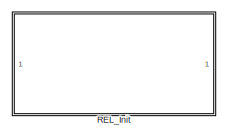
[diagram: root canvas - part 1/5, top left region]
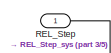
[diagram: root canvas - part 2/5, top center region]
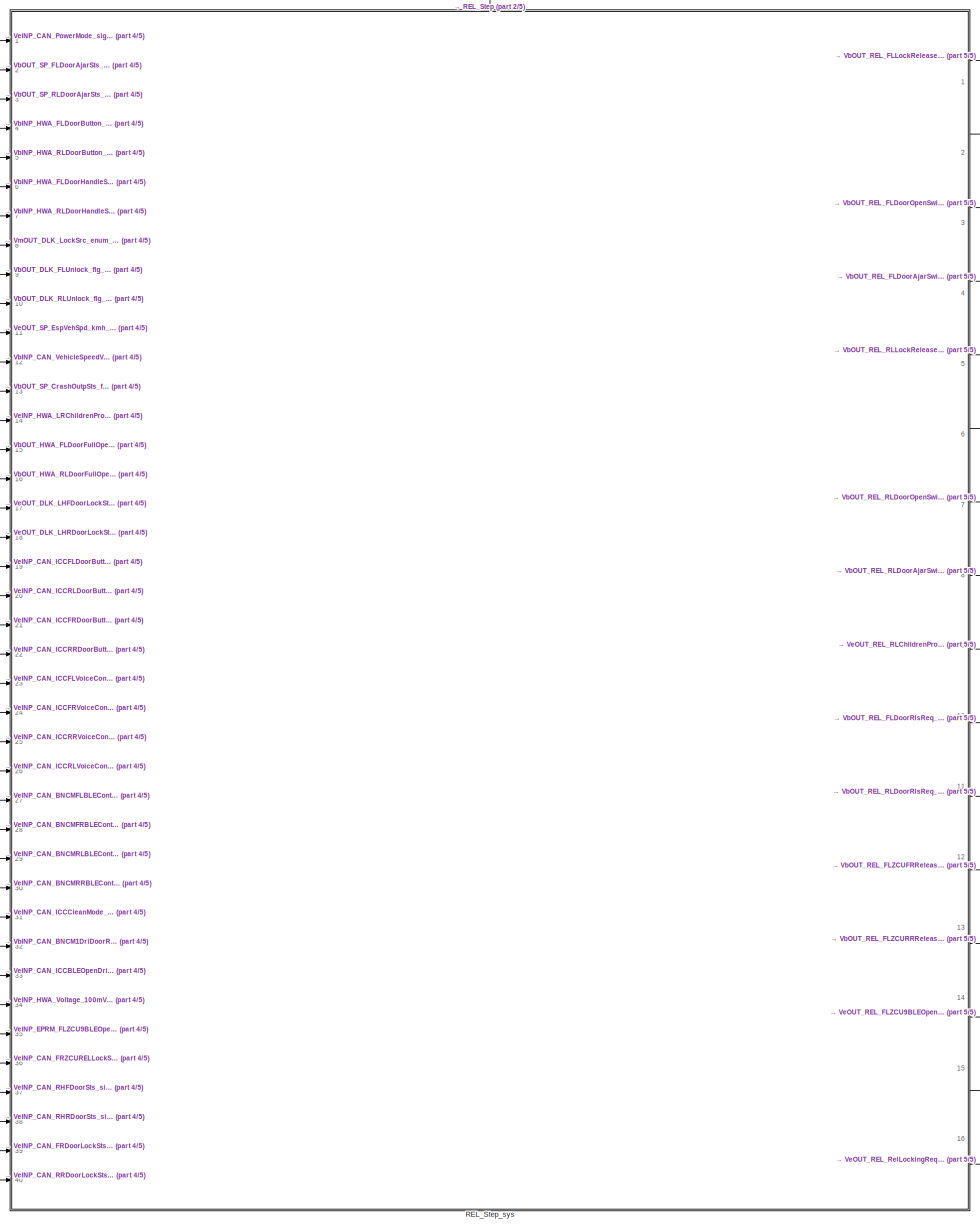
[diagram: root canvas - part 3/5, center side, full height]
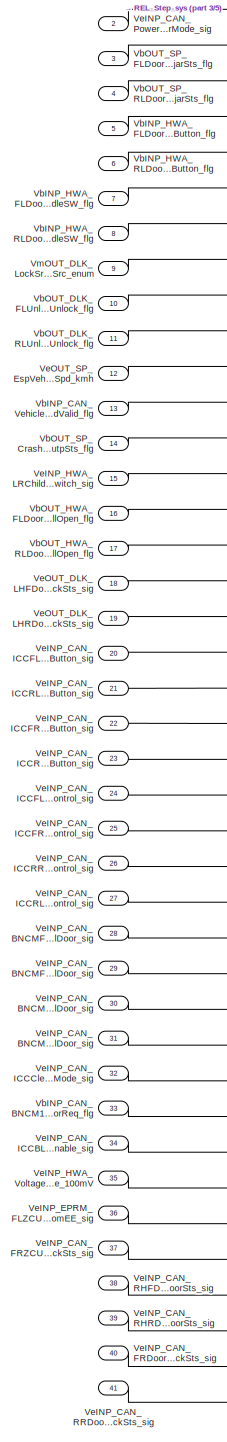
[diagram: root canvas - part 4/5, left side, full height]
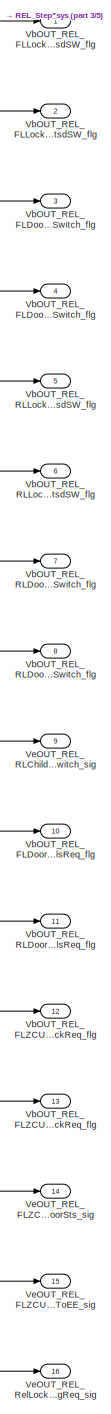
[diagram: root canvas - part 5/5, right side, full height]
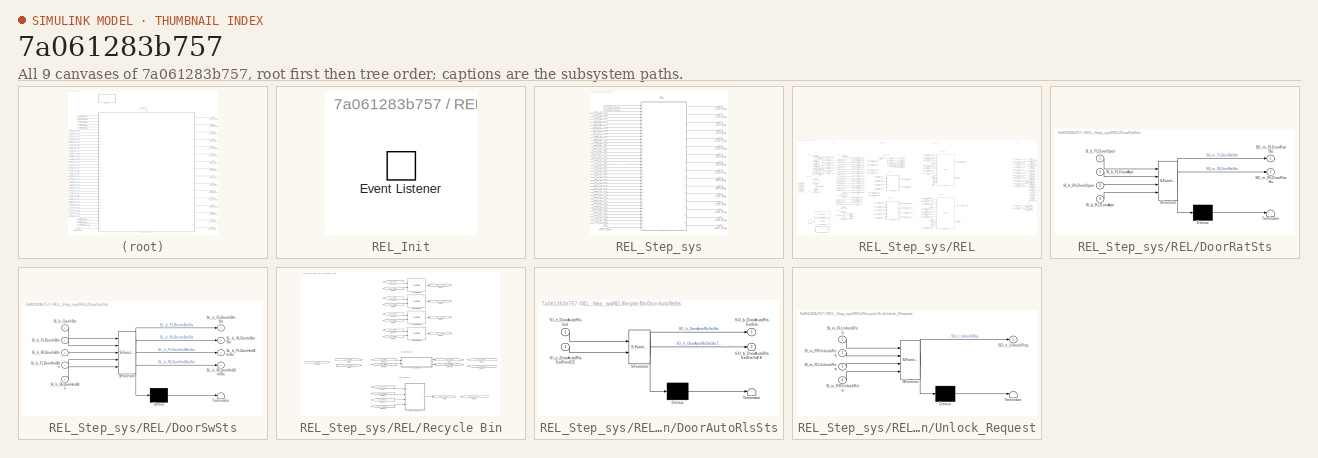
[diagram: thumbnail index - all 9 canvases of the model, root first then tree order]
MODEL slx_7a061283b757
KIND model
CONFIG AbsTol = auto
CONFIG EnableMultiTasking = on
CONFIG FixedStep = 0.01
CONFIG MaxStep = auto
CONFIG MinStep = auto
CONFIG RelTol = 1e-3
CONFIG SampleTimeConstraint = Unconstrained
CONFIG SolverName = FixedStepDiscrete
CONFIG StartTime = 0.0
CONFIG StopTime = 20.0
BLOCK [SubSystem] REL_Init
  Ports = []
  RequestExecContextInheritance = off
BLOCK [EventListener] REL_Init/Event Listener
  EventName = reset
BLOCK [Inport] REL_Step
  OutputFunctionCall = on
  SampleTime = 0.01
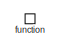
[diagram: REL_Step_sys - part 1/2, top center region]
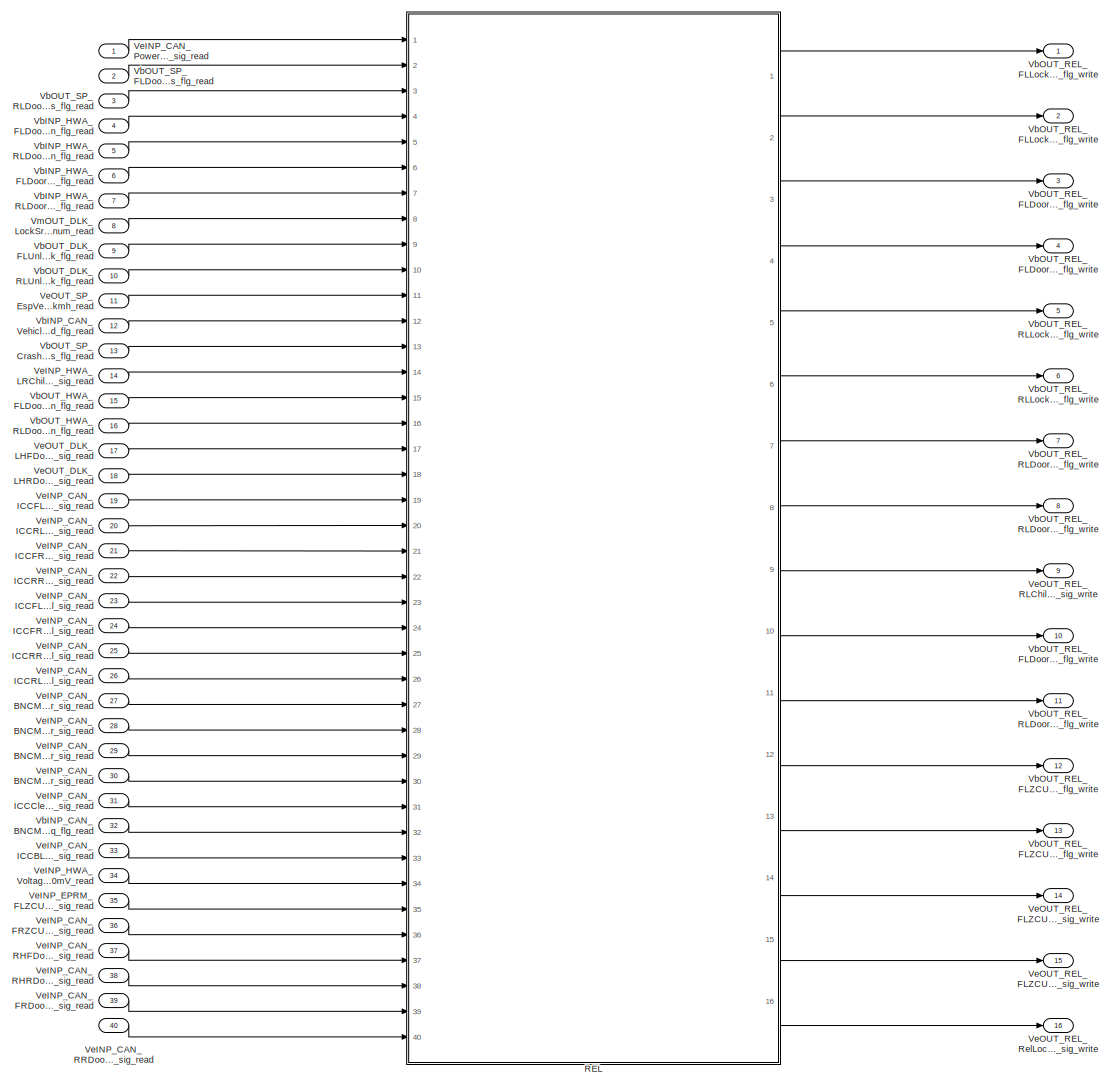
[diagram: REL_Step_sys - part 2/2, most of the canvas]
BLOCK [SubSystem] REL_Step_sys
  Ports = [40, 16, 0, 1]
  RequestExecContextInheritance = off
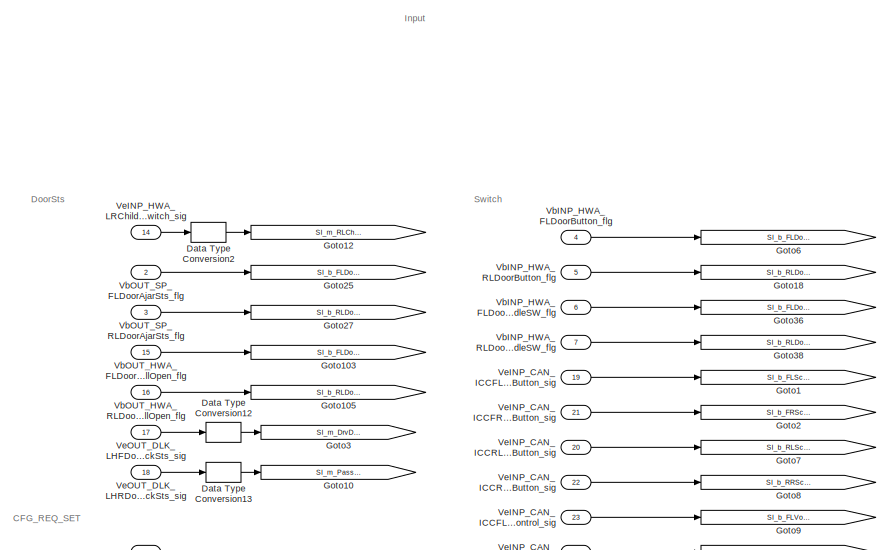
[diagram: REL_Step_sys/REL - part 1/5, top left region]
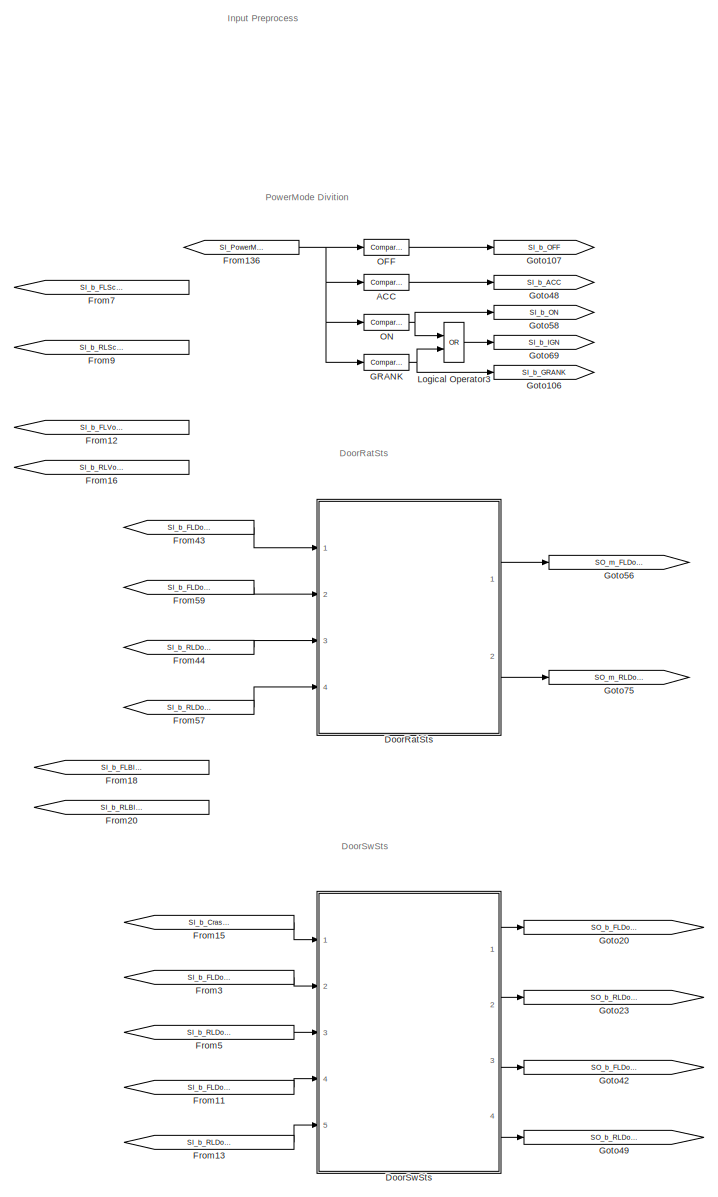
[diagram: REL_Step_sys/REL - part 2/5, center side, full height]
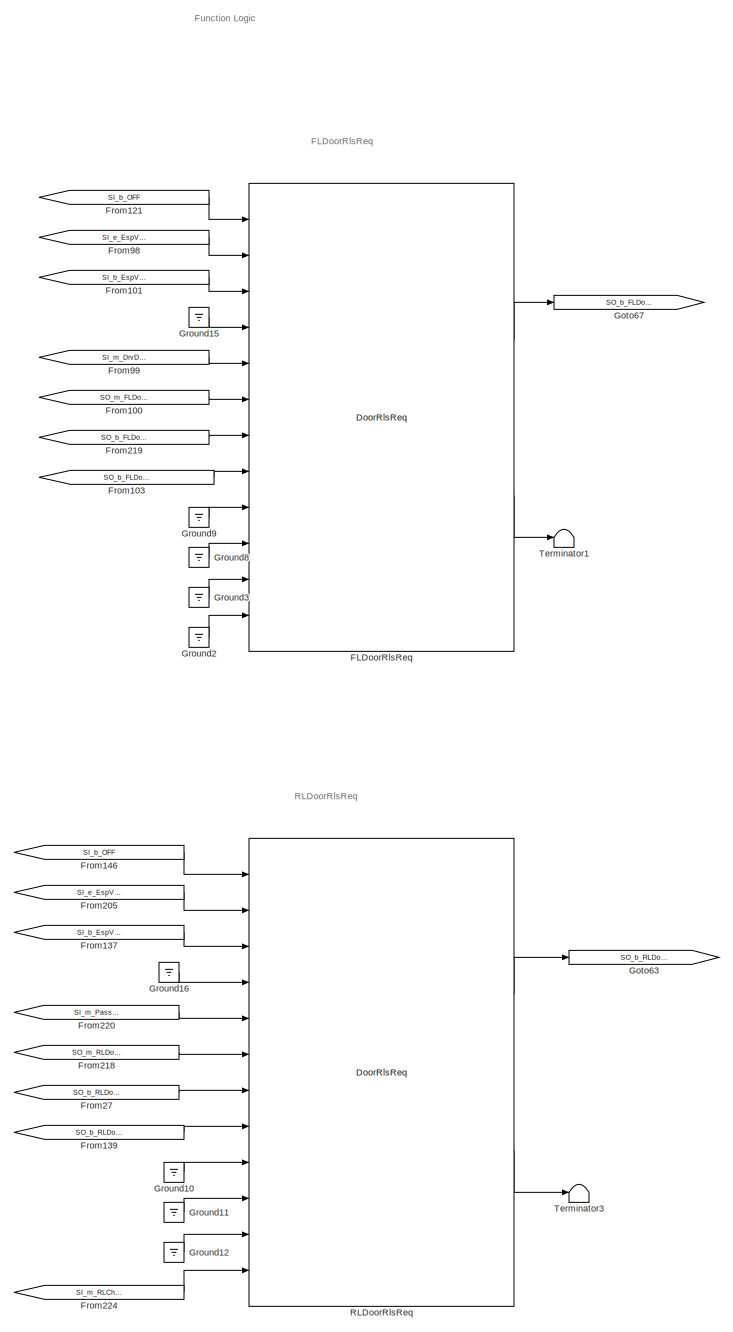
[diagram: REL_Step_sys/REL - part 3/5, center side, full height]
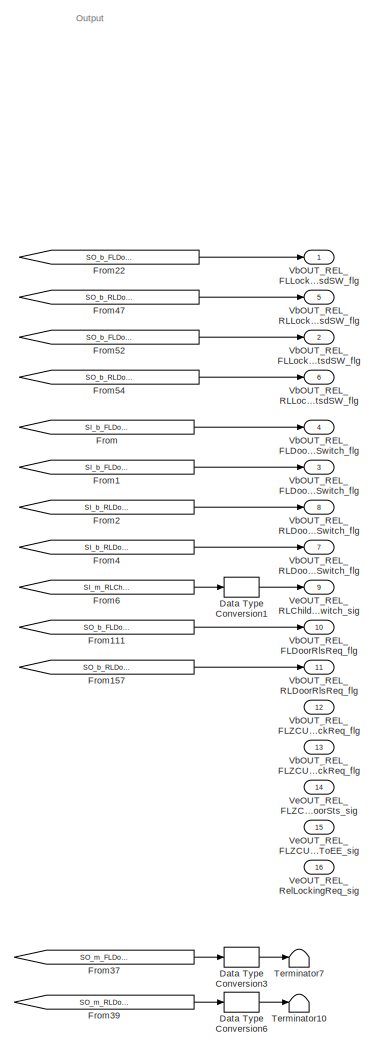
[diagram: REL_Step_sys/REL - part 4/5, right side, full height]
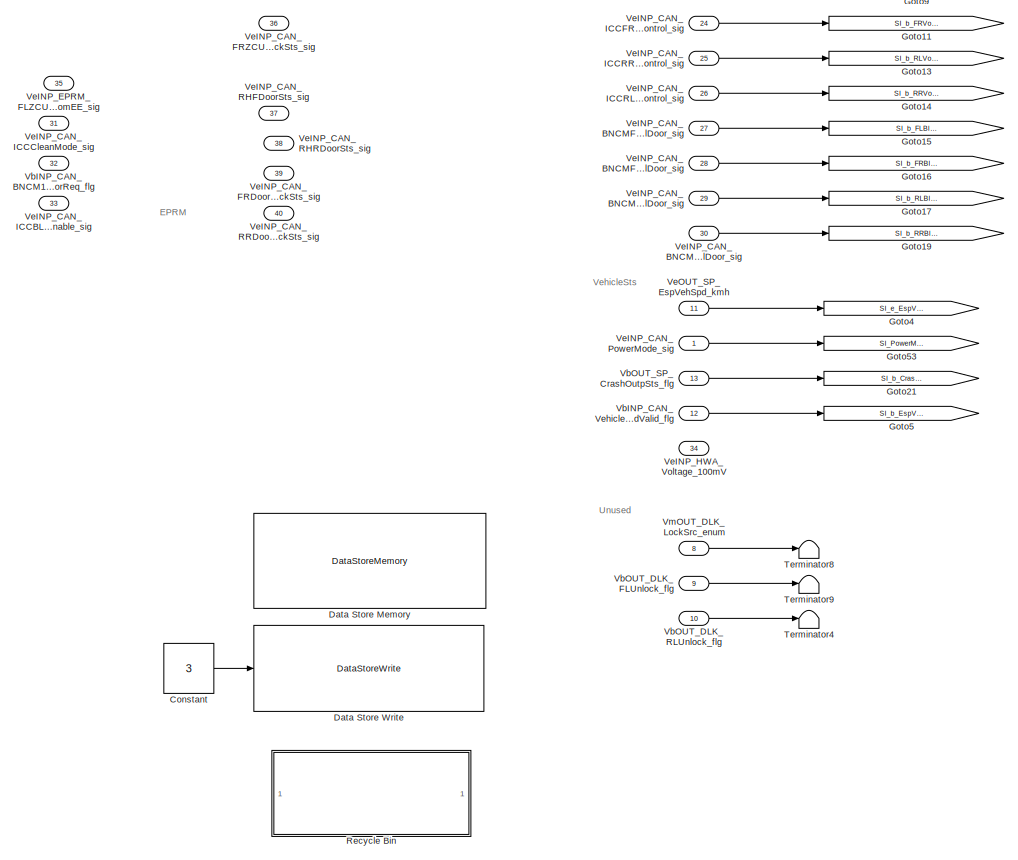
[diagram: REL_Step_sys/REL - part 5/5, bottom left region]
BLOCK [SubSystem] REL_Step_sys/REL
  Ports = [40, 16]
  RequestExecContextInheritance = off
BLOCK [Reference] REL_Step_sys/REL/ACC  REF=simulink/Logic and Bit
Operations/Compare
To Constant
  Commented = on
  Ports = [1, 1]
  SourceBlock = simulink/Logic and Bit\nOperations/Compare\nTo Constant
  SourceProductBaseCode = SL
  SourceType = Compare To Constant
BLOCK [Constant] REL_Step_sys/REL/Constant
  OutDataTypeStr = uint8
  Value = 3
BLOCK [DataStoreMemory] REL_Step_sys/REL/Data Store Memory
  DataStoreName = E03_REL_L
  OutDataTypeStr = uint8
  ShowAdditionalParam = off
  WriteAfterWriteMsg = warning
BLOCK [DataStoreWrite] REL_Step_sys/REL/Data Store Write
  DataStoreName = E03_REL_L
  IndexOptions = Index vector (dialog)
  Indices = 1
  OutputSizes = 1
  Ports = [1]
BLOCK [DataTypeConversion] REL_Step_sys/REL/Data Type Conversion1
  OutDataTypeStr = uint8
  RndMeth = Floor
  SaturateOnIntegerOverflow = off
BLOCK [DataTypeConversion] REL_Step_sys/REL/Data Type Conversion12
  OutDataTypeStr = Enum: Door_Sts_E
  RndMeth = Floor
  SaturateOnIntegerOverflow = off
BLOCK [DataTypeConversion] REL_Step_sys/REL/Data Type Conversion13
  OutDataTypeStr = Enum: Door_Sts_E
  RndMeth = Floor
  SaturateOnIntegerOverflow = off
BLOCK [DataTypeConversion] REL_Step_sys/REL/Data Type Conversion2
  OutDataTypeStr = Enum: Child_Sts_E
  RndMeth = Floor
  SaturateOnIntegerOverflow = off
BLOCK [DataTypeConversion] REL_Step_sys/REL/Data Type Conversion3
  Commented = on
  OutDataTypeStr = uint8
  RndMeth = Floor
  SaturateOnIntegerOverflow = off
BLOCK [DataTypeConversion] REL_Step_sys/REL/Data Type Conversion6
  Commented = on
  OutDataTypeStr = uint8
  RndMeth = Floor
  SaturateOnIntegerOverflow = off
BLOCK [SubSystem] REL_Step_sys/REL/DoorRatSts
  ErrorFcn = Stateflow.Translate.translate
  PermitHierarchicalResolution = ExplicitOnly
  Ports = [4, 2]
  RequestExecContextInheritance = off
  SFBlockType = Chart
  TreatAsAtomicUnit = on
BLOCK [Demux] REL_Step_sys/REL/DoorRatSts/ Demux 
  Outputs = 1
  Ports = [1, 1]
BLOCK [S-Function] REL_Step_sys/REL/DoorRatSts/ SFunction 
  EnableBusSupport = on
  FunctionName = sf_sfun
  PortCounts = [4 3]
  Ports = [4, 3]
  SFcnIsStateOwnerBlock = off
  SFunctionDeploymentMode = off
  Tag = Stateflow S-Function 3
BLOCK [Terminator] REL_Step_sys/REL/DoorRatSts/ Terminator 
BLOCK [Inport] REL_Step_sys/REL/DoorRatSts/SI_b_FLDoorAjar
  Port = 2
BLOCK [Inport] REL_Step_sys/REL/DoorRatSts/SI_b_FLDoorOpen
BLOCK [Inport] REL_Step_sys/REL/DoorRatSts/SI_b_RLDoorAjar
  Port = 4
BLOCK [Inport] REL_Step_sys/REL/DoorRatSts/SI_b_RLDoorOpen
  Port = 3
BLOCK [Outport] REL_Step_sys/REL/DoorRatSts/SO_m_FLDoorRatSts
BLOCK [Outport] REL_Step_sys/REL/DoorRatSts/SO_m_RLDoorRatSts
  Port = 2
BLOCK [SubSystem] REL_Step_sys/REL/DoorSwSts
  ErrorFcn = Stateflow.Translate.translate
  PermitHierarchicalResolution = ExplicitOnly
  Ports = [5, 4]
  RequestExecContextInheritance = off
  SFBlockType = Chart
  TreatAsAtomicUnit = on
BLOCK [Demux] REL_Step_sys/REL/DoorSwSts/ Demux 
  Outputs = 1
  Ports = [1, 1]
BLOCK [S-Function] REL_Step_sys/REL/DoorSwSts/ SFunction 
  EnableBusSupport = on
  FunctionName = sf_sfun
  PortCounts = [5 5]
  Ports = [5, 5]
  SFcnIsStateOwnerBlock = off
  SFunctionDeploymentMode = off
  Tag = Stateflow S-Function 23
BLOCK [Terminator] REL_Step_sys/REL/DoorSwSts/ Terminator 
BLOCK [Inport] REL_Step_sys/REL/DoorSwSts/SI_b_CrashSts
BLOCK [Inport] REL_Step_sys/REL/DoorSwSts/SI_b_FLDoorHndBtn
  Port = 4
BLOCK [Inport] REL_Step_sys/REL/DoorSwSts/SI_b_FLDoorInBtn
  Port = 2
BLOCK [Inport] REL_Step_sys/REL/DoorSwSts/SI_b_RLDoorHndBtn
  Port = 5
BLOCK [Inport] REL_Step_sys/REL/DoorSwSts/SI_b_RLDoorInBtn
  Port = 3
BLOCK [Outport] REL_Step_sys/REL/DoorSwSts/SL_b_FLDoorHndBtnSts
  Port = 3
BLOCK [Outport] REL_Step_sys/REL/DoorSwSts/SL_b_FLDoorInBtnSts
BLOCK [Outport] REL_Step_sys/REL/DoorSwSts/SL_b_RLDoorHndBtnSts
  Port = 4
BLOCK [Outport] REL_Step_sys/REL/DoorSwSts/SL_b_RLDoorInBtnSts
  Port = 2
BLOCK [Reference] REL_Step_sys/REL/FLDoorRlsReq  REF=DoorRlsReq/DoorRlsReq
  Ports = [12, 2]
  SourceBlock = DoorRlsReq/DoorRlsReq
  SourceType = SubSystem
BLOCK [From] REL_Step_sys/REL/From
  GotoTag = SI_b_FLDoorAjar
BLOCK [From] REL_Step_sys/REL/From1
  GotoTag = SI_b_FLDoorOpen
BLOCK [From] REL_Step_sys/REL/From100
  GotoTag = SO_m_FLDoorRatSts
BLOCK [From] REL_Step_sys/REL/From101
  GotoTag = SI_b_EspVehSpdVld
BLOCK [From] REL_Step_sys/REL/From103
  GotoTag = SO_b_FLDoorHndBtnSts
BLOCK [From] REL_Step_sys/REL/From11
  GotoTag = SI_b_FLDoorHndBtn
BLOCK [From] REL_Step_sys/REL/From111
  GotoTag = SO_b_FLDoorRlsReq
BLOCK [From] REL_Step_sys/REL/From12
  GotoTag = SI_b_FLVoiceCtrl
BLOCK [From] REL_Step_sys/REL/From121
  GotoTag = SI_b_OFF
BLOCK [From] REL_Step_sys/REL/From13
  GotoTag = SI_b_RLDoorHndBtn
BLOCK [From] REL_Step_sys/REL/From136
  GotoTag = SI_PowerMode
BLOCK [From] REL_Step_sys/REL/From137
  GotoTag = SI_b_EspVehSpdVld
BLOCK [From] REL_Step_sys/REL/From139
  GotoTag = SO_b_RLDoorHndBtnSts
BLOCK [From] REL_Step_sys/REL/From146
  GotoTag = SI_b_OFF
BLOCK [From] REL_Step_sys/REL/From15
  GotoTag = SI_b_CrashSts
BLOCK [From] REL_Step_sys/REL/From157
  GotoTag = SO_b_RLDoorRlsReq
BLOCK [From] REL_Step_sys/REL/From16
  GotoTag = SI_b_RLVoiceCtrl
BLOCK [From] REL_Step_sys/REL/From18
  GotoTag = SI_b_FLBleCtrl
BLOCK [From] REL_Step_sys/REL/From2
  GotoTag = SI_b_RLDoorAjar
BLOCK [From] REL_Step_sys/REL/From20
  GotoTag = SI_b_RLBleCtrl
BLOCK [From] REL_Step_sys/REL/From205
  GotoTag = SI_e_EspVehSpd
BLOCK [From] REL_Step_sys/REL/From218
  GotoTag = SO_m_RLDoorRatSts
BLOCK [From] REL_Step_sys/REL/From219
  GotoTag = SO_b_FLDoorInBtnSts
BLOCK [From] REL_Step_sys/REL/From22
  GotoTag = SO_b_FLDoorInBtnSts
BLOCK [From] REL_Step_sys/REL/From220
  GotoTag = SI_m_PassDoorLockSts
BLOCK [From] REL_Step_sys/REL/From224
  GotoTag = SI_m_RLChildLckSts
BLOCK [From] REL_Step_sys/REL/From27
  GotoTag = SO_b_RLDoorInBtnSts
BLOCK [From] REL_Step_sys/REL/From3
  GotoTag = SI_b_FLDoorInBtn
BLOCK [From] REL_Step_sys/REL/From37
  Commented = on
  GotoTag = SO_m_FLDoorRatSts
BLOCK [From] REL_Step_sys/REL/From39
  Commented = on
  GotoTag = SO_m_RLDoorRatSts
BLOCK [From] REL_Step_sys/REL/From4
  GotoTag = SI_b_RLDoorOpen
BLOCK [From] REL_Step_sys/REL/From43
  GotoTag = SI_b_FLDoorOpen
BLOCK [From] REL_Step_sys/REL/From44
  GotoTag = SI_b_RLDoorOpen
BLOCK [From] REL_Step_sys/REL/From47
  GotoTag = SO_b_RLDoorInBtnSts
BLOCK [From] REL_Step_sys/REL/From5
  GotoTag = SI_b_RLDoorInBtn
BLOCK [From] REL_Step_sys/REL/From52
  GotoTag = SO_b_FLDoorHndBtnSts
BLOCK [From] REL_Step_sys/REL/From54
  GotoTag = SO_b_RLDoorHndBtnSts
BLOCK [From] REL_Step_sys/REL/From57
  GotoTag = SI_b_RLDoorAjar
BLOCK [From] REL_Step_sys/REL/From59
  GotoTag = SI_b_FLDoorAjar
BLOCK [From] REL_Step_sys/REL/From6
  GotoTag = SI_m_RLChildLckSts
BLOCK [From] REL_Step_sys/REL/From7
  GotoTag = SI_b_FLScrnDoorBtn
BLOCK [From] REL_Step_sys/REL/From9
  GotoTag = SI_b_RLScrnDoorBtn
BLOCK [From] REL_Step_sys/REL/From98
  GotoTag = SI_e_EspVehSpd
BLOCK [From] REL_Step_sys/REL/From99
  GotoTag = SI_m_DrvDoorLockSts
BLOCK [Reference] REL_Step_sys/REL/GRANK  REF=simulink/Logic and Bit
Operations/Compare
To Constant
  Commented = on
  Ports = [1, 1]
  SourceBlock = simulink/Logic and Bit\nOperations/Compare\nTo Constant
  SourceProductBaseCode = SL
  SourceType = Compare To Constant
BLOCK [Goto] REL_Step_sys/REL/Goto1
  GotoTag = SI_b_FLScrnDoorBtn
BLOCK [Goto] REL_Step_sys/REL/Goto10
  GotoTag = SI_m_PassDoorLockSts
BLOCK [Goto] REL_Step_sys/REL/Goto103
  GotoTag = SI_b_FLDoorOpen
BLOCK [Goto] REL_Step_sys/REL/Goto105
  GotoTag = SI_b_RLDoorOpen
BLOCK [Goto] REL_Step_sys/REL/Goto106
  Commented = on
  GotoTag = SI_b_GRANK
BLOCK [Goto] REL_Step_sys/REL/Goto107
  GotoTag = SI_b_OFF
BLOCK [Goto] REL_Step_sys/REL/Goto11
  GotoTag = SI_b_FRVoiceCtrl
BLOCK [Goto] REL_Step_sys/REL/Goto12
  GotoTag = SI_m_RLChildLckSts
BLOCK [Goto] REL_Step_sys/REL/Goto13
  GotoTag = SI_b_RLVoiceCtrl
BLOCK [Goto] REL_Step_sys/REL/Goto14
  GotoTag = SI_b_RRVoiceCtrl
BLOCK [Goto] REL_Step_sys/REL/Goto15
  GotoTag = SI_b_FLBleCtrl
BLOCK [Goto] REL_Step_sys/REL/Goto16
  GotoTag = SI_b_FRBleCtrl
BLOCK [Goto] REL_Step_sys/REL/Goto17
  GotoTag = SI_b_RLBleCtrl
BLOCK [Goto] REL_Step_sys/REL/Goto18
  GotoTag = SI_b_RLDoorInBtn
BLOCK [Goto] REL_Step_sys/REL/Goto19
  GotoTag = SI_b_RRBleCtrl
BLOCK [Goto] REL_Step_sys/REL/Goto2
  GotoTag = SI_b_FRScrnDoorBtn
BLOCK [Goto] REL_Step_sys/REL/Goto20
  GotoTag = SO_b_FLDoorInBtnSts
BLOCK [Goto] REL_Step_sys/REL/Goto21
  GotoTag = SI_b_CrashSts
BLOCK [Goto] REL_Step_sys/REL/Goto23
  GotoTag = SO_b_RLDoorInBtnSts
BLOCK [Goto] REL_Step_sys/REL/Goto25
  GotoTag = SI_b_FLDoorAjar
BLOCK [Goto] REL_Step_sys/REL/Goto27
  GotoTag = SI_b_RLDoorAjar
BLOCK [Goto] REL_Step_sys/REL/Goto3
  GotoTag = SI_m_DrvDoorLockSts
BLOCK [Goto] REL_Step_sys/REL/Goto36
  GotoTag = SI_b_FLDoorHndBtn
BLOCK [Goto] REL_Step_sys/REL/Goto38
  GotoTag = SI_b_RLDoorHndBtn
BLOCK [Goto] REL_Step_sys/REL/Goto4
  GotoTag = SI_e_EspVehSpd
BLOCK [Goto] REL_Step_sys/REL/Goto42
  GotoTag = SO_b_FLDoorHndBtnSts
BLOCK [Goto] REL_Step_sys/REL/Goto48
  Commented = on
  GotoTag = SI_b_ACC
BLOCK [Goto] REL_Step_sys/REL/Goto49
  GotoTag = SO_b_RLDoorHndBtnSts
BLOCK [Goto] REL_Step_sys/REL/Goto5
  GotoTag = SI_b_EspVehSpdVld
BLOCK [Goto] REL_Step_sys/REL/Goto53
  GotoTag = SI_PowerMode
BLOCK [Goto] REL_Step_sys/REL/Goto56
  GotoTag = SO_m_FLDoorRatSts
BLOCK [Goto] REL_Step_sys/REL/Goto58
  Commented = on
  GotoTag = SI_b_ON
BLOCK [Goto] REL_Step_sys/REL/Goto6
  GotoTag = SI_b_FLDoorInBtn
BLOCK [Goto] REL_Step_sys/REL/Goto63
  GotoTag = SO_b_RLDoorRlsReq
BLOCK [Goto] REL_Step_sys/REL/Goto67
  GotoTag = SO_b_FLDoorRlsReq
BLOCK [Goto] REL_Step_sys/REL/Goto69
  Commented = on
  GotoTag = SI_b_IGN
BLOCK [Goto] REL_Step_sys/REL/Goto7
  GotoTag = SI_b_RLScrnDoorBtn
BLOCK [Goto] REL_Step_sys/REL/Goto75
  GotoTag = SO_m_RLDoorRatSts
BLOCK [Goto] REL_Step_sys/REL/Goto8
  GotoTag = SI_b_RRScrnDoorBtn
BLOCK [Goto] REL_Step_sys/REL/Goto9
  GotoTag = SI_b_FLVoiceCtrl
BLOCK [Ground] REL_Step_sys/REL/Ground10
BLOCK [Ground] REL_Step_sys/REL/Ground11
BLOCK [Ground] REL_Step_sys/REL/Ground12
BLOCK [Ground] REL_Step_sys/REL/Ground15
BLOCK [Ground] REL_Step_sys/REL/Ground16
BLOCK [Ground] REL_Step_sys/REL/Ground2
BLOCK [Ground] REL_Step_sys/REL/Ground3
BLOCK [Ground] REL_Step_sys/REL/Ground8
BLOCK [Ground] REL_Step_sys/REL/Ground9
BLOCK [Logic] REL_Step_sys/REL/Logical Operator3
  AllPortsSameDT = off
  Commented = on
  Operator = OR
  OutDataTypeStr = boolean
  Ports = [2, 1]
BLOCK [Reference] REL_Step_sys/REL/OFF   REF=simulink/Logic and Bit
Operations/Compare
To Constant
  Ports = [1, 1]
  SourceBlock = simulink/Logic and Bit\nOperations/Compare\nTo Constant
  SourceProductBaseCode = SL
  SourceType = Compare To Constant
BLOCK [Reference] REL_Step_sys/REL/ON  REF=simulink/Logic and Bit
Operations/Compare
To Constant
  Commented = on
  Ports = [1, 1]
  SourceBlock = simulink/Logic and Bit\nOperations/Compare\nTo Constant
  SourceProductBaseCode = SL
  SourceType = Compare To Constant
BLOCK [Reference] REL_Step_sys/REL/RLDoorRlsReq  REF=DoorRlsReq/DoorRlsReq
  Ports = [12, 2]
  SourceBlock = DoorRlsReq/DoorRlsReq
  SourceType = SubSystem
BLOCK [SubSystem] REL_Step_sys/REL/Recycle Bin
  Ports = []
  RequestExecContextInheritance = off
BLOCK [SubSystem] REL_Step_sys/REL/Recycle Bin/DoorAutoRlsSts
  Commented = on
  ErrorFcn = Stateflow.Translate.translate
  PermitHierarchicalResolution = ExplicitOnly
  Ports = [2, 2]
  RequestExecContextInheritance = off
  SFBlockType = Chart
  TreatAsAtomicUnit = on
BLOCK [Demux] REL_Step_sys/REL/Recycle Bin/DoorAutoRlsSts/ Demux 
  Outputs = 1
  Ports = [1, 1]
BLOCK [S-Function] REL_Step_sys/REL/Recycle Bin/DoorAutoRlsSts/ SFunction 
  EnableBusSupport = on
  FunctionName = sf_sfun
  PortCounts = [2 3]
  Ports = [2, 3]
  SFcnIsStateOwnerBlock = off
  SFunctionDeploymentMode = off
  Tag = Stateflow S-Function 1
BLOCK [Terminator] REL_Step_sys/REL/Recycle Bin/DoorAutoRlsSts/ Terminator 
BLOCK [Inport] REL_Step_sys/REL/Recycle Bin/DoorAutoRlsSts/SI_e_DoorAutoRlsSet
BLOCK [Inport] REL_Step_sys/REL/Recycle Bin/DoorAutoRlsSts/SI_e_DoorAutoRlsSetFromEE
  Port = 2
BLOCK [Outport] REL_Step_sys/REL/Recycle Bin/DoorAutoRlsSts/SO_b_DoorAutoRlsSetSts
BLOCK [Outport] REL_Step_sys/REL/Recycle Bin/DoorAutoRlsSts/SO_b_DoorAutoRlsSetStsToEE
  Port = 2
BLOCK [Reference] REL_Step_sys/REL/Recycle Bin/FLDoorRatSts  REF=DoorRatSts/DoorRatSts
  Commented = on
  Ports = [2, 1]
  SourceBlock = DoorRatSts/DoorRatSts
  SourceType = SubSystem
BLOCK [Reference] REL_Step_sys/REL/Recycle Bin/FRDoorRatSts  REF=DoorRatSts/DoorRatSts
  Commented = on
  Ports = [2, 1]
  SourceBlock = DoorRatSts/DoorRatSts
  SourceType = SubSystem
BLOCK [From] REL_Step_sys/REL/Recycle Bin/From1
  Commented = on
  GotoTag = SO_b_DrvrDoorAutoRlsSetSts
BLOCK [From] REL_Step_sys/REL/Recycle Bin/From132
  Commented = on
  GotoTag = SL_m_FRUnlockReq
BLOCK [From] REL_Step_sys/REL/Recycle Bin/From189
  Commented = on
  GotoTag = SI_b_FRDoorOpen
BLOCK [From] REL_Step_sys/REL/Recycle Bin/From190
  Commented = on
  GotoTag = SI_b_FLDoorOpen
BLOCK [From] REL_Step_sys/REL/Recycle Bin/From191
  Commented = on
  GotoTag = SI_b_RLDoorOpen
BLOCK [From] REL_Step_sys/REL/Recycle Bin/From192
  Commented = on
  GotoTag = SI_b_RRDoorOpen
BLOCK [From] REL_Step_sys/REL/Recycle Bin/From207
  Commented = on
  GotoTag = SL_m_RLUnlockReq
BLOCK [From] REL_Step_sys/REL/Recycle Bin/From208
  Commented = on
  GotoTag = SL_m_RRUnlockReq
BLOCK [From] REL_Step_sys/REL/Recycle Bin/From239
  Commented = on
  GotoTag = SI_e_DrvDoorAutoRlsSet
BLOCK [From] REL_Step_sys/REL/Recycle Bin/From30
  Commented = on
  GotoTag = SI_b_FRDoorAjar
BLOCK [From] REL_Step_sys/REL/Recycle Bin/From31
  Commented = on
  GotoTag = SI_b_RLDoorAjar
BLOCK [From] REL_Step_sys/REL/Recycle Bin/From32
  Commented = on
  GotoTag = SI_b_RRDoorAjar
BLOCK [From] REL_Step_sys/REL/Recycle Bin/From33
  Commented = on
  GotoTag = SI_b_FLDoorAjar
BLOCK [From] REL_Step_sys/REL/Recycle Bin/From35
  Commented = on
  GotoTag = SO_b_DrvDoorAutoRlsSetStsToEE
BLOCK [From] REL_Step_sys/REL/Recycle Bin/From42
  Commented = on
  GotoTag = SI_e_DrvDoorAutoRlsSetFromEE
BLOCK [From] REL_Step_sys/REL/Recycle Bin/From51
  Commented = on
  GotoTag = SO_e_DLKUnlockReq
BLOCK [From] REL_Step_sys/REL/Recycle Bin/From85
  Commented = on
  GotoTag = SL_m_FLUnlockReq
BLOCK [Goto] REL_Step_sys/REL/Recycle Bin/Goto
  Commented = on
  GotoTag = SI_e_DrvDoorAutoRlsSetFromEE
BLOCK [Goto] REL_Step_sys/REL/Recycle Bin/Goto1
  Commented = on
  GotoTag = SO_b_DrvrDoorAutoRlsSetSts
BLOCK [Goto] REL_Step_sys/REL/Recycle Bin/Goto109
  Commented = on
  GotoTag = SO_b_DrvDoorAutoRlsSetStsToEE
BLOCK [Goto] REL_Step_sys/REL/Recycle Bin/Goto2
  Commented = on
  GotoTag = SI_e_DrvDoorAutoRlsSet
BLOCK [Goto] REL_Step_sys/REL/Recycle Bin/Goto29
  Commented = on
  GotoTag = SO_e_FLDoorRatSts
BLOCK [Goto] REL_Step_sys/REL/Recycle Bin/Goto30
  Commented = on
  GotoTag = SO_e_FRDoorRatSts
BLOCK [Goto] REL_Step_sys/REL/Recycle Bin/Goto31
  Commented = on
  GotoTag = SO_e_RLDoorRatSts
BLOCK [Goto] REL_Step_sys/REL/Recycle Bin/Goto32
  Commented = on
  GotoTag = SO_e_RRDoorRatSts
BLOCK [Goto] REL_Step_sys/REL/Recycle Bin/Goto54
  Commented = on
  GotoTag = SI_b_DrvrDoorAutoRlsReq
BLOCK [Goto] REL_Step_sys/REL/Recycle Bin/Goto8
  Commented = on
  GotoTag = SO_e_DLKUnlockReq
BLOCK [Reference] REL_Step_sys/REL/Recycle Bin/RLDoorRatSts  REF=DoorRatSts/DoorRatSts
  Commented = on
  Ports = [2, 1]
  SourceBlock = DoorRatSts/DoorRatSts
  SourceType = SubSystem
BLOCK [Reference] REL_Step_sys/REL/Recycle Bin/RRDoorRatSts  REF=DoorRatSts/DoorRatSts
  Commented = on
  Ports = [2, 1]
  SourceBlock = DoorRatSts/DoorRatSts
  SourceType = SubSystem
BLOCK [SubSystem] REL_Step_sys/REL/Recycle Bin/Unlock_Request
  Commented = on
  ErrorFcn = Stateflow.Translate.translate
  PermitHierarchicalResolution = ExplicitOnly
  Ports = [4, 1]
  RequestExecContextInheritance = off
  SFBlockType = Chart
  TreatAsAtomicUnit = on
BLOCK [Demux] REL_Step_sys/REL/Recycle Bin/Unlock_Request/ Demux 
  Outputs = 1
  Ports = [1, 1]
BLOCK [S-Function] REL_Step_sys/REL/Recycle Bin/Unlock_Request/ SFunction 
  EnableBusSupport = on
  FunctionName = sf_sfun
  PortCounts = [4 2]
  Ports = [4, 2]
  SFcnIsStateOwnerBlock = off
  SFunctionDeploymentMode = off
  Tag = Stateflow S-Function 2
BLOCK [Terminator] REL_Step_sys/REL/Recycle Bin/Unlock_Request/ Terminator 
BLOCK [Inport] REL_Step_sys/REL/Recycle Bin/Unlock_Request/SI_m_FLUnlockReq
BLOCK [Inport] REL_Step_sys/REL/Recycle Bin/Unlock_Request/SI_m_FRUnlockReq
  Port = 2
BLOCK [Inport] REL_Step_sys/REL/Recycle Bin/Unlock_Request/SI_m_RLUnlockReq
  Port = 3
BLOCK [Inport] REL_Step_sys/REL/Recycle Bin/Unlock_Request/SI_m_RRUnlockReq
  Port = 4
BLOCK [Outport] REL_Step_sys/REL/Recycle Bin/Unlock_Request/SO_e_UnlockReq
BLOCK [Terminator] REL_Step_sys/REL/Terminator1
BLOCK [Terminator] REL_Step_sys/REL/Terminator10
  Commented = on
BLOCK [Terminator] REL_Step_sys/REL/Terminator3
BLOCK [Terminator] REL_Step_sys/REL/Terminator4
BLOCK [Terminator] REL_Step_sys/REL/Terminator7
  Commented = on
BLOCK [Terminator] REL_Step_sys/REL/Terminator8
BLOCK [Terminator] REL_Step_sys/REL/Terminator9
BLOCK [Inport] REL_Step_sys/REL/VbINP_CAN_BNCM1DriDoorReq_flg
  Port = 32
BLOCK [Inport] REL_Step_sys/REL/VbINP_CAN_VehicleSpeedValid_flg
  Port = 12
BLOCK [Inport] REL_Step_sys/REL/VbINP_HWA_FLDoorButton_flg
  Port = 4
BLOCK [Inport] REL_Step_sys/REL/VbINP_HWA_FLDoorHandleSW_flg
  Port = 6
BLOCK [Inport] REL_Step_sys/REL/VbINP_HWA_RLDoorButton_flg
  Port = 5
BLOCK [Inport] REL_Step_sys/REL/VbINP_HWA_RLDoorHandleSW_flg
  Port = 7
BLOCK [Inport] REL_Step_sys/REL/VbOUT_DLK_FLUnlock_flg
  Port = 9
BLOCK [Inport] REL_Step_sys/REL/VbOUT_DLK_RLUnlock_flg
  Port = 10
BLOCK [Inport] REL_Step_sys/REL/VbOUT_HWA_FLDoorFullOpen_flg
  Port = 15
BLOCK [Inport] REL_Step_sys/REL/VbOUT_HWA_RLDoorFullOpen_flg
  Port = 16
BLOCK [Outport] REL_Step_sys/REL/VbOUT_REL_FLDoorAjarSwitch_flg
  Port = 4
BLOCK [Outport] REL_Step_sys/REL/VbOUT_REL_FLDoorOpenSwitch_flg
  Port = 3
BLOCK [Outport] REL_Step_sys/REL/VbOUT_REL_FLDoorRlsReq_flg
  Port = 10
BLOCK [Outport] REL_Step_sys/REL/VbOUT_REL_FLLockReleaseInsdSW_flg
BLOCK [Outport] REL_Step_sys/REL/VbOUT_REL_FLLockReleaseOutsdSW_flg
  Port = 2
BLOCK [Outport] REL_Step_sys/REL/VbOUT_REL_FLZCUFRReleaseLockReq_flg
  Port = 12
BLOCK [Outport] REL_Step_sys/REL/VbOUT_REL_FLZCURRReleaseLockReq_flg
  Port = 13
BLOCK [Outport] REL_Step_sys/REL/VbOUT_REL_RLDoorAjarSwitch_flg
  Port = 8
BLOCK [Outport] REL_Step_sys/REL/VbOUT_REL_RLDoorOpenSwitch_flg
  Port = 7
BLOCK [Outport] REL_Step_sys/REL/VbOUT_REL_RLDoorRlsReq_flg
  Port = 11
BLOCK [Outport] REL_Step_sys/REL/VbOUT_REL_RLLockReleaseInsdSW_flg
  Port = 5
BLOCK [Outport] REL_Step_sys/REL/VbOUT_REL_RLLockReleaseOutsdSW_flg
  Port = 6
BLOCK [Inport] REL_Step_sys/REL/VbOUT_SP_CrashOutpSts_flg
  Port = 13
BLOCK [Inport] REL_Step_sys/REL/VbOUT_SP_FLDoorAjarSts_flg
  Port = 2
BLOCK [Inport] REL_Step_sys/REL/VbOUT_SP_RLDoorAjarSts_flg
  Port = 3
BLOCK [Inport] REL_Step_sys/REL/VeINP_CAN_BNCMFLBLEControlDoor_sig
  Port = 27
BLOCK [Inport] REL_Step_sys/REL/VeINP_CAN_BNCMFRBLEControlDoor_sig
  Port = 28
BLOCK [Inport] REL_Step_sys/REL/VeINP_CAN_BNCMRLBLEControlDoor_sig
  Port = 29
BLOCK [Inport] REL_Step_sys/REL/VeINP_CAN_BNCMRRBLEControlDoor_sig
  Port = 30
BLOCK [Inport] REL_Step_sys/REL/VeINP_CAN_FRDoorLockSts_sig
  Port = 39
BLOCK [Inport] REL_Step_sys/REL/VeINP_CAN_FRZCURELLockSts_sig
  Port = 36
BLOCK [Inport] REL_Step_sys/REL/VeINP_CAN_ICCBLEOpenDriverDoorEnable_sig
  Port = 33
BLOCK [Inport] REL_Step_sys/REL/VeINP_CAN_ICCCleanMode_sig
  Port = 31
BLOCK [Inport] REL_Step_sys/REL/VeINP_CAN_ICCFLDoorButton_sig
  Port = 19
BLOCK [Inport] REL_Step_sys/REL/VeINP_CAN_ICCFLVoiceControl_sig
  Port = 23
BLOCK [Inport] REL_Step_sys/REL/VeINP_CAN_ICCFRDoorButton_sig
  Port = 21
BLOCK [Inport] REL_Step_sys/REL/VeINP_CAN_ICCFRVoiceControl_sig
  Port = 24
BLOCK [Inport] REL_Step_sys/REL/VeINP_CAN_ICCRLDoorButton_sig
  Port = 20
BLOCK [Inport] REL_Step_sys/REL/VeINP_CAN_ICCRLVoiceControl_sig
  Port = 26
BLOCK [Inport] REL_Step_sys/REL/VeINP_CAN_ICCRRDoorButton_sig
  Port = 22
BLOCK [Inport] REL_Step_sys/REL/VeINP_CAN_ICCRRVoiceControl_sig
  Port = 25
BLOCK [Inport] REL_Step_sys/REL/VeINP_CAN_PowerMode_sig
BLOCK [Inport] REL_Step_sys/REL/VeINP_CAN_RHFDoorSts_sig
  Port = 37
BLOCK [Inport] REL_Step_sys/REL/VeINP_CAN_RHRDoorSts_sig
  Port = 38
BLOCK [Inport] REL_Step_sys/REL/VeINP_CAN_RRDoorLockSts_sig
  Port = 40
BLOCK [Inport] REL_Step_sys/REL/VeINP_EPRM_FLZCU9BLEOpenDriverDoorStsFromEE_sig
  Port = 35
BLOCK [Inport] REL_Step_sys/REL/VeINP_HWA_LRChildrenProtectSwitch_sig
  Port = 14
BLOCK [Inport] REL_Step_sys/REL/VeINP_HWA_Voltage_100mV
  Port = 34
BLOCK [Inport] REL_Step_sys/REL/VeOUT_DLK_LHFDoorLockSts_sig
  Port = 17
BLOCK [Inport] REL_Step_sys/REL/VeOUT_DLK_LHRDoorLockSts_sig
  Port = 18
BLOCK [Outport] REL_Step_sys/REL/VeOUT_REL_FLZCU9BLEOpenDriverDoorStsToEE_sig
  Port = 15
BLOCK [Outport] REL_Step_sys/REL/VeOUT_REL_FLZCU9BLEOpenDriverDoorSts_sig
  Port = 14
BLOCK [Outport] REL_Step_sys/REL/VeOUT_REL_RLChildrenProtectSwitch_sig
  Port = 9
BLOCK [Outport] REL_Step_sys/REL/VeOUT_REL_RelLockingReq_sig
  Port = 16
BLOCK [Inport] REL_Step_sys/REL/VeOUT_SP_EspVehSpd_kmh
  Port = 11
BLOCK [Inport] REL_Step_sys/REL/VmOUT_DLK_LockSrc_enum
  Port = 8
BLOCK [Inport] REL_Step_sys/VbINP_CAN_BNCM1DriDoorReq_flg_VbINP_CAN_BNCM1DriDoorReq_flg_read
  Port = 32
BLOCK [Inport] REL_Step_sys/VbINP_CAN_VehicleSpeedValid_flg_VbINP_CAN_VehicleSpeedValid_flg_read
  Port = 12
BLOCK [Inport] REL_Step_sys/VbINP_HWA_FLDoorButton_flg_VbINP_HWA_FLDoorButton_flg_read
  Port = 4
BLOCK [Inport] REL_Step_sys/VbINP_HWA_FLDoorHandleSW_flg_VbINP_HWA_FLDoorHandleSW_flg_read
  Port = 6
BLOCK [Inport] REL_Step_sys/VbINP_HWA_RLDoorButton_flg_VbINP_HWA_RLDoorButton_flg_read
  Port = 5
BLOCK [Inport] REL_Step_sys/VbINP_HWA_RLDoorHandleSW_flg_VbINP_HWA_RLDoorHandleSW_flg_read
  Port = 7
BLOCK [Inport] REL_Step_sys/VbOUT_DLK_FLUnlock_flg_VbOUT_DLK_FLUnlock_flg_read
  Port = 9
BLOCK [Inport] REL_Step_sys/VbOUT_DLK_RLUnlock_flg_VbOUT_DLK_RLUnlock_flg_read
  Port = 10
BLOCK [Inport] REL_Step_sys/VbOUT_HWA_FLDoorFullOpen_flg_VbOUT_HWA_FLDoorFullOpen_flg_read
  Port = 15
BLOCK [Inport] REL_Step_sys/VbOUT_HWA_RLDoorFullOpen_flg_VbOUT_HWA_RLDoorFullOpen_flg_read
  Port = 16
BLOCK [Outport] REL_Step_sys/VbOUT_REL_FLDoorAjarSwitch_flg_VbOUT_REL_FLDoorAjarSwitch_flg_write
  EnsureOutportIsVirtual = on
  Port = 4
BLOCK [Outport] REL_Step_sys/VbOUT_REL_FLDoorOpenSwitch_flg_VbOUT_REL_FLDoorOpenSwitch_flg_write
  EnsureOutportIsVirtual = on
  Port = 3
BLOCK [Outport] REL_Step_sys/VbOUT_REL_FLDoorRlsReq_flg_VbOUT_REL_FLDoorRlsReq_flg_write
  EnsureOutportIsVirtual = on
  Port = 10
BLOCK [Outport] REL_Step_sys/VbOUT_REL_FLLockReleaseInsdSW_flg_VbOUT_REL_FLLockReleaseInsdSW_flg_write
  EnsureOutportIsVirtual = on
BLOCK [Outport] REL_Step_sys/VbOUT_REL_FLLockReleaseOutsdSW_flg_VbOUT_REL_FLLockReleaseOutsdSW_flg_write
  EnsureOutportIsVirtual = on
  Port = 2
BLOCK [Outport] REL_Step_sys/VbOUT_REL_FLZCUFRReleaseLockReq_flg_VbOUT_REL_FLZCUFRReleaseLockReq_flg_write
  EnsureOutportIsVirtual = on
  Port = 12
BLOCK [Outport] REL_Step_sys/VbOUT_REL_FLZCURRReleaseLockReq_flg_VbOUT_REL_FLZCURRReleaseLockReq_flg_write
  EnsureOutportIsVirtual = on
  Port = 13
BLOCK [Outport] REL_Step_sys/VbOUT_REL_RLDoorAjarSwitch_flg_VbOUT_REL_RLDoorAjarSwitch_flg_write
  EnsureOutportIsVirtual = on
  Port = 8
BLOCK [Outport] REL_Step_sys/VbOUT_REL_RLDoorOpenSwitch_flg_VbOUT_REL_RLDoorOpenSwitch_flg_write
  EnsureOutportIsVirtual = on
  Port = 7
BLOCK [Outport] REL_Step_sys/VbOUT_REL_RLDoorRlsReq_flg_VbOUT_REL_RLDoorRlsReq_flg_write
  EnsureOutportIsVirtual = on
  Port = 11
BLOCK [Outport] REL_Step_sys/VbOUT_REL_RLLockReleaseInsdSW_flg_VbOUT_REL_RLLockReleaseInsdSW_flg_write
  EnsureOutportIsVirtual = on
  Port = 5
BLOCK [Outport] REL_Step_sys/VbOUT_REL_RLLockReleaseOutsdSW_flg_VbOUT_REL_RLLockReleaseOutsdSW_flg_write
  EnsureOutportIsVirtual = on
  Port = 6
BLOCK [Inport] REL_Step_sys/VbOUT_SP_CrashOutpSts_flg_VbOUT_SP_CrashOutpSts_flg_read
  Port = 13
BLOCK [Inport] REL_Step_sys/VbOUT_SP_FLDoorAjarSts_flg_VbOUT_SP_FLDoorAjarSts_flg_read
  Port = 2
BLOCK [Inport] REL_Step_sys/VbOUT_SP_RLDoorAjarSts_flg_VbOUT_SP_RLDoorAjarSts_flg_read
  Port = 3
BLOCK [Inport] REL_Step_sys/VeINP_CAN_BNCMFLBLEControlDoor_sig_VeINP_CAN_BNCMFLBLEControlDoor_sig_read
  Port = 27
BLOCK [Inport] REL_Step_sys/VeINP_CAN_BNCMFRBLEControlDoor_sig_VeINP_CAN_BNCMFRBLEControlDoor_sig_read
  Port = 28
BLOCK [Inport] REL_Step_sys/VeINP_CAN_BNCMRLBLEControlDoor_sig_VeINP_CAN_BNCMRLBLEControlDoor_sig_read
  Port = 29
BLOCK [Inport] REL_Step_sys/VeINP_CAN_BNCMRRBLEControlDoor_sig_VeINP_CAN_BNCMRRBLEControlDoor_sig_read
  Port = 30
BLOCK [Inport] REL_Step_sys/VeINP_CAN_FRDoorLockSts_sig_VeINP_CAN_FRDoorLockSts_sig_read
  Port = 39
BLOCK [Inport] REL_Step_sys/VeINP_CAN_FRZCURELLockSts_sig_VeINP_CAN_FRZCURELLockSts_sig_read
  Port = 36
BLOCK [Inport] REL_Step_sys/VeINP_CAN_ICCBLEOpenDriverDoorEnable_sig_VeINP_CAN_ICCBLEOpenDriverDoorEnable_sig_read
  Port = 33
BLOCK [Inport] REL_Step_sys/VeINP_CAN_ICCCleanMode_sig_VeINP_CAN_ICCCleanMode_sig_read
  Port = 31
BLOCK [Inport] REL_Step_sys/VeINP_CAN_ICCFLDoorButton_sig_VeINP_CAN_ICCFLDoorButton_sig_read
  Port = 19
BLOCK [Inport] REL_Step_sys/VeINP_CAN_ICCFLVoiceControl_sig_VeINP_CAN_ICCFLVoiceControl_sig_read
  Port = 23
BLOCK [Inport] REL_Step_sys/VeINP_CAN_ICCFRDoorButton_sig_VeINP_CAN_ICCFRDoorButton_sig_read
  Port = 21
BLOCK [Inport] REL_Step_sys/VeINP_CAN_ICCFRVoiceControl_sig_VeINP_CAN_ICCFRVoiceControl_sig_read
  Port = 24
BLOCK [Inport] REL_Step_sys/VeINP_CAN_ICCRLDoorButton_sig_VeINP_CAN_ICCRLDoorButton_sig_read
  Port = 20
BLOCK [Inport] REL_Step_sys/VeINP_CAN_ICCRLVoiceControl_sig_VeINP_CAN_ICCRLVoiceControl_sig_read
  Port = 26
BLOCK [Inport] REL_Step_sys/VeINP_CAN_ICCRRDoorButton_sig_VeINP_CAN_ICCRRDoorButton_sig_read
  Port = 22
BLOCK [Inport] REL_Step_sys/VeINP_CAN_ICCRRVoiceControl_sig_VeINP_CAN_ICCRRVoiceControl_sig_read
  Port = 25
BLOCK [Inport] REL_Step_sys/VeINP_CAN_PowerMode_sig_VeINP_CAN_PowerMode_sig_read
BLOCK [Inport] REL_Step_sys/VeINP_CAN_RHFDoorSts_sig_VeINP_CAN_RHFDoorSts_sig_read
  Port = 37
BLOCK [Inport] REL_Step_sys/VeINP_CAN_RHRDoorSts_sig_VeINP_CAN_RHRDoorSts_sig_read
  Port = 38
BLOCK [Inport] REL_Step_sys/VeINP_CAN_RRDoorLockSts_sig_VeINP_CAN_RRDoorLockSts_sig_read
  Port = 40
BLOCK [Inport] REL_Step_sys/VeINP_EPRM_FLZCU9BLEOpenDriverDoorStsFromEE_sig_VeINP_EPRM_FLZCU9BLEOpenDriverDoorStsFromEE_sig_read
  Port = 35
BLOCK [Inport] REL_Step_sys/VeINP_HWA_LRChildrenProtectSwitch_sig_VeINP_HWA_LRChildrenProtectSwitch_sig_read
  Port = 14
BLOCK [Inport] REL_Step_sys/VeINP_HWA_Voltage_100mV_VeINP_HWA_Voltage_100mV_read
  Port = 34
BLOCK [Inport] REL_Step_sys/VeOUT_DLK_LHFDoorLockSts_sig_VeOUT_DLK_LHFDoorLockSts_sig_read
  Port = 17
BLOCK [Inport] REL_Step_sys/VeOUT_DLK_LHRDoorLockSts_sig_VeOUT_DLK_LHRDoorLockSts_sig_read
  Port = 18
BLOCK [Outport] REL_Step_sys/VeOUT_REL_FLZCU9BLEOpenDriverDoorStsToEE_sig_VeOUT_REL_FLZCU9BLEOpenDriverDoorStsToEE_sig_write
  EnsureOutportIsVirtual = on
  Port = 15
BLOCK [Outport] REL_Step_sys/VeOUT_REL_FLZCU9BLEOpenDriverDoorSts_sig_VeOUT_REL_FLZCU9BLEOpenDriverDoorSts_sig_write
  EnsureOutportIsVirtual = on
  Port = 14
BLOCK [Outport] REL_Step_sys/VeOUT_REL_RLChildrenProtectSwitch_sig_VeOUT_REL_RLChildrenProtectSwitch_sig_write
  EnsureOutportIsVirtual = on
  Port = 9
BLOCK [Outport] REL_Step_sys/VeOUT_REL_RelLockingReq_sig_VeOUT_REL_RelLockingReq_sig_write
  EnsureOutportIsVirtual = on
  Port = 16
BLOCK [Inport] REL_Step_sys/VeOUT_SP_EspVehSpd_kmh_VeOUT_SP_EspVehSpd_kmh_read
  Port = 11
BLOCK [Inport] REL_Step_sys/VmOUT_DLK_LockSrc_enum_VmOUT_DLK_LockSrc_enum_read
  Port = 8
BLOCK [TriggerPort] REL_Step_sys/function
  Ports = []
  SampleTime = -1
  SampleTimeType = periodic
  StatesWhenEnabling = held
  TriggerType = function-call
  VariantControl = (inherit)
BLOCK [Inport] VbINP_CAN_BNCM1DriDoorReq_flg_VbINP_CAN_BNCM1DriDoorReq_flg
  OutDataTypeStr = Boolean
  Port = 33
  PortDimensions = 1
  SamplingMode = Sample based
  SignalType = real
BLOCK [Inport] VbINP_CAN_VehicleSpeedValid_flg_VbINP_CAN_VehicleSpeedValid_flg
  OutDataTypeStr = Boolean
  Port = 13
  PortDimensions = 1
  SamplingMode = Sample based
  SignalType = real
BLOCK [Inport] VbINP_HWA_FLDoorButton_flg_VbINP_HWA_FLDoorButton_flg
  OutDataTypeStr = Boolean
  Port = 5
  PortDimensions = 1
  SamplingMode = Sample based
  SignalType = real
BLOCK [Inport] VbINP_HWA_FLDoorHandleSW_flg_VbINP_HWA_FLDoorHandleSW_flg
  OutDataTypeStr = Boolean
  Port = 7
  PortDimensions = 1
  SamplingMode = Sample based
  SignalType = real
BLOCK [Inport] VbINP_HWA_RLDoorButton_flg_VbINP_HWA_RLDoorButton_flg
  OutDataTypeStr = Boolean
  Port = 6
  PortDimensions = 1
  SamplingMode = Sample based
  SignalType = real
BLOCK [Inport] VbINP_HWA_RLDoorHandleSW_flg_VbINP_HWA_RLDoorHandleSW_flg
  OutDataTypeStr = Boolean
  Port = 8
  PortDimensions = 1
  SamplingMode = Sample based
  SignalType = real
BLOCK [Inport] VbOUT_DLK_FLUnlock_flg_VbOUT_DLK_FLUnlock_flg
  OutDataTypeStr = Boolean
  Port = 10
  PortDimensions = 1
  SamplingMode = Sample based
  SignalType = real
BLOCK [Inport] VbOUT_DLK_RLUnlock_flg_VbOUT_DLK_RLUnlock_flg
  OutDataTypeStr = Boolean
  Port = 11
  PortDimensions = 1
  SamplingMode = Sample based
  SignalType = real
BLOCK [Inport] VbOUT_HWA_FLDoorFullOpen_flg_VbOUT_HWA_FLDoorFullOpen_flg
  OutDataTypeStr = Boolean
  Port = 16
  PortDimensions = 1
  SamplingMode = Sample based
  SignalType = real
BLOCK [Inport] VbOUT_HWA_RLDoorFullOpen_flg_VbOUT_HWA_RLDoorFullOpen_flg
  OutDataTypeStr = Boolean
  Port = 17
  PortDimensions = 1
  SamplingMode = Sample based
  SignalType = real
BLOCK [Outport] VbOUT_REL_FLDoorAjarSwitch_flg_VbOUT_REL_FLDoorAjarSwitch_flg
  OutDataTypeStr = Boolean
  Port = 4
  PortDimensions = 1
  SamplingMode = Sample based
  SignalType = real
BLOCK [Outport] VbOUT_REL_FLDoorOpenSwitch_flg_VbOUT_REL_FLDoorOpenSwitch_flg
  OutDataTypeStr = Boolean
  Port = 3
  PortDimensions = 1
  SamplingMode = Sample based
  SignalType = real
BLOCK [Outport] VbOUT_REL_FLDoorRlsReq_flg_VbOUT_REL_FLDoorRlsReq_flg
  OutDataTypeStr = Boolean
  Port = 10
  PortDimensions = 1
  SamplingMode = Sample based
  SignalType = real
BLOCK [Outport] VbOUT_REL_FLLockReleaseInsdSW_flg_VbOUT_REL_FLLockReleaseInsdSW_flg
  OutDataTypeStr = Boolean
  PortDimensions = 1
  SamplingMode = Sample based
  SignalType = real
BLOCK [Outport] VbOUT_REL_FLLockReleaseOutsdSW_flg_VbOUT_REL_FLLockReleaseOutsdSW_flg
  OutDataTypeStr = Boolean
  Port = 2
  PortDimensions = 1
  SamplingMode = Sample based
  SignalType = real
BLOCK [Outport] VbOUT_REL_FLZCUFRReleaseLockReq_flg_VbOUT_REL_FLZCUFRReleaseLockReq_flg
  OutDataTypeStr = Boolean
  Port = 12
  PortDimensions = 1
  SamplingMode = Sample based
  SignalType = real
BLOCK [Outport] VbOUT_REL_FLZCURRReleaseLockReq_flg_VbOUT_REL_FLZCURRReleaseLockReq_flg
  OutDataTypeStr = Boolean
  Port = 13
  PortDimensions = 1
  SamplingMode = Sample based
  SignalType = real
BLOCK [Outport] VbOUT_REL_RLDoorAjarSwitch_flg_VbOUT_REL_RLDoorAjarSwitch_flg
  OutDataTypeStr = Boolean
  Port = 8
  PortDimensions = 1
  SamplingMode = Sample based
  SignalType = real
BLOCK [Outport] VbOUT_REL_RLDoorOpenSwitch_flg_VbOUT_REL_RLDoorOpenSwitch_flg
  OutDataTypeStr = Boolean
  Port = 7
  PortDimensions = 1
  SamplingMode = Sample based
  SignalType = real
BLOCK [Outport] VbOUT_REL_RLDoorRlsReq_flg_VbOUT_REL_RLDoorRlsReq_flg
  OutDataTypeStr = Boolean
  Port = 11
  PortDimensions = 1
  SamplingMode = Sample based
  SignalType = real
BLOCK [Outport] VbOUT_REL_RLLockReleaseInsdSW_flg_VbOUT_REL_RLLockReleaseInsdSW_flg
  OutDataTypeStr = Boolean
  Port = 5
  PortDimensions = 1
  SamplingMode = Sample based
  SignalType = real
BLOCK [Outport] VbOUT_REL_RLLockReleaseOutsdSW_flg_VbOUT_REL_RLLockReleaseOutsdSW_flg
  OutDataTypeStr = Boolean
  Port = 6
  PortDimensions = 1
  SamplingMode = Sample based
  SignalType = real
BLOCK [Inport] VbOUT_SP_CrashOutpSts_flg_VbOUT_SP_CrashOutpSts_flg
  OutDataTypeStr = Boolean
  Port = 14
  PortDimensions = 1
  SamplingMode = Sample based
  SignalType = real
BLOCK [Inport] VbOUT_SP_FLDoorAjarSts_flg_VbOUT_SP_FLDoorAjarSts_flg
  OutDataTypeStr = Boolean
  Port = 3
  PortDimensions = 1
  SamplingMode = Sample based
  SignalType = real
BLOCK [Inport] VbOUT_SP_RLDoorAjarSts_flg_VbOUT_SP_RLDoorAjarSts_flg
  OutDataTypeStr = Boolean
  Port = 4
  PortDimensions = 1
  SamplingMode = Sample based
  SignalType = real
BLOCK [Inport] VeINP_CAN_BNCMFLBLEControlDoor_sig_VeINP_CAN_BNCMFLBLEControlDoor_sig
  OutDataTypeStr = UInt8
  Port = 28
  PortDimensions = 1
  SamplingMode = Sample based
  SignalType = real
BLOCK [Inport] VeINP_CAN_BNCMFRBLEControlDoor_sig_VeINP_CAN_BNCMFRBLEControlDoor_sig
  OutDataTypeStr = UInt8
  Port = 29
  PortDimensions = 1
  SamplingMode = Sample based
  SignalType = real
BLOCK [Inport] VeINP_CAN_BNCMRLBLEControlDoor_sig_VeINP_CAN_BNCMRLBLEControlDoor_sig
  OutDataTypeStr = UInt8
  Port = 30
  PortDimensions = 1
  SamplingMode = Sample based
  SignalType = real
BLOCK [Inport] VeINP_CAN_BNCMRRBLEControlDoor_sig_VeINP_CAN_BNCMRRBLEControlDoor_sig
  OutDataTypeStr = UInt8
  Port = 31
  PortDimensions = 1
  SamplingMode = Sample based
  SignalType = real
BLOCK [Inport] VeINP_CAN_FRDoorLockSts_sig_VeINP_CAN_FRDoorLockSts_sig
  OutDataTypeStr = UInt8
  Port = 40
  PortDimensions = 1
  SamplingMode = Sample based
  SignalType = real
BLOCK [Inport] VeINP_CAN_FRZCURELLockSts_sig_VeINP_CAN_FRZCURELLockSts_sig
  OutDataTypeStr = UInt8
  Port = 37
  PortDimensions = 1
  SamplingMode = Sample based
  SignalType = real
BLOCK [Inport] VeINP_CAN_ICCBLEOpenDriverDoorEnable_sig_VeINP_CAN_ICCBLEOpenDriverDoorEnable_sig
  OutDataTypeStr = UInt8
  Port = 34
  PortDimensions = 1
  SamplingMode = Sample based
  SignalType = real
BLOCK [Inport] VeINP_CAN_ICCCleanMode_sig_VeINP_CAN_ICCCleanMode_sig
  OutDataTypeStr = UInt8
  Port = 32
  PortDimensions = 1
  SamplingMode = Sample based
  SignalType = real
BLOCK [Inport] VeINP_CAN_ICCFLDoorButton_sig_VeINP_CAN_ICCFLDoorButton_sig
  OutDataTypeStr = UInt8
  Port = 20
  PortDimensions = 1
  SamplingMode = Sample based
  SignalType = real
BLOCK [Inport] VeINP_CAN_ICCFLVoiceControl_sig_VeINP_CAN_ICCFLVoiceControl_sig
  OutDataTypeStr = UInt8
  Port = 24
  PortDimensions = 1
  SamplingMode = Sample based
  SignalType = real
BLOCK [Inport] VeINP_CAN_ICCFRDoorButton_sig_VeINP_CAN_ICCFRDoorButton_sig
  OutDataTypeStr = UInt8
  Port = 22
  PortDimensions = 1
  SamplingMode = Sample based
  SignalType = real
BLOCK [Inport] VeINP_CAN_ICCFRVoiceControl_sig_VeINP_CAN_ICCFRVoiceControl_sig
  OutDataTypeStr = UInt8
  Port = 25
  PortDimensions = 1
  SamplingMode = Sample based
  SignalType = real
BLOCK [Inport] VeINP_CAN_ICCRLDoorButton_sig_VeINP_CAN_ICCRLDoorButton_sig
  OutDataTypeStr = UInt8
  Port = 21
  PortDimensions = 1
  SamplingMode = Sample based
  SignalType = real
BLOCK [Inport] VeINP_CAN_ICCRLVoiceControl_sig_VeINP_CAN_ICCRLVoiceControl_sig
  OutDataTypeStr = UInt8
  Port = 27
  PortDimensions = 1
  SamplingMode = Sample based
  SignalType = real
BLOCK [Inport] VeINP_CAN_ICCRRDoorButton_sig_VeINP_CAN_ICCRRDoorButton_sig
  OutDataTypeStr = UInt8
  Port = 23
  PortDimensions = 1
  SamplingMode = Sample based
  SignalType = real
BLOCK [Inport] VeINP_CAN_ICCRRVoiceControl_sig_VeINP_CAN_ICCRRVoiceControl_sig
  OutDataTypeStr = UInt8
  Port = 26
  PortDimensions = 1
  SamplingMode = Sample based
  SignalType = real
BLOCK [Inport] VeINP_CAN_PowerMode_sig_VeINP_CAN_PowerMode_sig
  OutDataTypeStr = UInt8
  Port = 2
  PortDimensions = 1
  SamplingMode = Sample based
  SignalType = real
BLOCK [Inport] VeINP_CAN_RHFDoorSts_sig_VeINP_CAN_RHFDoorSts_sig
  OutDataTypeStr = UInt8
  Port = 38
  PortDimensions = 1
  SamplingMode = Sample based
  SignalType = real
BLOCK [Inport] VeINP_CAN_RHRDoorSts_sig_VeINP_CAN_RHRDoorSts_sig
  OutDataTypeStr = UInt8
  Port = 39
  PortDimensions = 1
  SamplingMode = Sample based
  SignalType = real
BLOCK [Inport] VeINP_CAN_RRDoorLockSts_sig_VeINP_CAN_RRDoorLockSts_sig
  OutDataTypeStr = UInt8
  Port = 41
  PortDimensions = 1
  SamplingMode = Sample based
  SignalType = real
BLOCK [Inport] VeINP_EPRM_FLZCU9BLEOpenDriverDoorStsFromEE_sig_VeINP_EPRM_FLZCU9BLEOpenDriverDoorStsFromEE_sig
  OutDataTypeStr = UInt8
  Port = 36
  PortDimensions = 1
  SamplingMode = Sample based
  SignalType = real
BLOCK [Inport] VeINP_HWA_LRChildrenProtectSwitch_sig_VeINP_HWA_LRChildrenProtectSwitch_sig
  OutDataTypeStr = UInt8
  Port = 15
  PortDimensions = 1
  SamplingMode = Sample based
  SignalType = real
BLOCK [Inport] VeINP_HWA_Voltage_100mV_VeINP_HWA_Voltage_100mV
  OutDataTypeStr = UInt8
  Port = 35
  PortDimensions = 1
  SamplingMode = Sample based
  SignalType = real
BLOCK [Inport] VeOUT_DLK_LHFDoorLockSts_sig_VeOUT_DLK_LHFDoorLockSts_sig
  OutDataTypeStr = UInt8
  Port = 18
  PortDimensions = 1
  SamplingMode = Sample based
  SignalType = real
BLOCK [Inport] VeOUT_DLK_LHRDoorLockSts_sig_VeOUT_DLK_LHRDoorLockSts_sig
  OutDataTypeStr = UInt8
  Port = 19
  PortDimensions = 1
  SamplingMode = Sample based
  SignalType = real
BLOCK [Outport] VeOUT_REL_FLZCU9BLEOpenDriverDoorStsToEE_sig_VeOUT_REL_FLZCU9BLEOpenDriverDoorStsToEE_sig
  OutDataTypeStr = UInt8
  Port = 15
  PortDimensions = 1
  SamplingMode = Sample based
  SignalType = real
BLOCK [Outport] VeOUT_REL_FLZCU9BLEOpenDriverDoorSts_sig_VeOUT_REL_FLZCU9BLEOpenDriverDoorSts_sig
  OutDataTypeStr = UInt8
  Port = 14
  PortDimensions = 1
  SamplingMode = Sample based
  SignalType = real
BLOCK [Outport] VeOUT_REL_RLChildrenProtectSwitch_sig_VeOUT_REL_RLChildrenProtectSwitch_sig
  OutDataTypeStr = UInt8
  Port = 9
  PortDimensions = 1
  SamplingMode = Sample based
  SignalType = real
BLOCK [Outport] VeOUT_REL_RelLockingReq_sig_VeOUT_REL_RelLockingReq_sig
  OutDataTypeStr = UInt8
  Port = 16
  PortDimensions = 1
  SamplingMode = Sample based
  SignalType = real
BLOCK [Inport] VeOUT_SP_EspVehSpd_kmh_VeOUT_SP_EspVehSpd_kmh
  OutDataTypeStr = UInt8
  Port = 12
  PortDimensions = 1
  SamplingMode = Sample based
  SignalType = real
BLOCK [Inport] VmOUT_DLK_LockSrc_enum_VmOUT_DLK_LockSrc_enum
  OutDataTypeStr = UInt8
  Port = 9
  PortDimensions = 1
  SamplingMode = Sample based
  SignalType = real
ANNOTATION REL_Step_sys/REL: DoorRatSts
ANNOTATION REL_Step_sys/REL: DoorSwSts
ANNOTATION REL_Step_sys/REL: FLDoorRlsReq
ANNOTATION REL_Step_sys/REL: PowerMode Divition
ANNOTATION REL_Step_sys/REL: RLDoorRlsReq
ANNOTATION REL_Step_sys/REL: Input Preprocess
ANNOTATION REL_Step_sys/REL: Output
ANNOTATION REL_Step_sys/REL: Function Logic
ANNOTATION REL_Step_sys/REL: Input
ANNOTATION REL_Step_sys/REL: CFG_REQ_SET
ANNOTATION REL_Step_sys/REL: DoorSts
ANNOTATION REL_Step_sys/REL: EPRM
ANNOTATION REL_Step_sys/REL: Switch
ANNOTATION REL_Step_sys/REL: Unused
ANNOTATION REL_Step_sys/REL: VehicleSts
ANNOTATION REL_Step_sys/REL/Recycle Bin: DoorAutoRlsSetSts
ANNOTATION REL_Step_sys/REL/Recycle Bin: Unlock Request
LINE REL_Step:1 -> REL_Step_sys:trigger
LINE REL_Step_sys/REL/ACC:1 -> REL_Step_sys/REL/Goto48:1
LINE REL_Step_sys/REL/Constant:1 -> REL_Step_sys/REL/Data Store Write:1
LINE REL_Step_sys/REL/Data Type Conversion12:1 -> REL_Step_sys/REL/Goto3:1
LINE REL_Step_sys/REL/Data Type Conversion13:1 -> REL_Step_sys/REL/Goto10:1
LINE REL_Step_sys/REL/Data Type Conversion1:1 -> REL_Step_sys/REL/VeOUT_REL_RLChildrenProtectSwitch_sig:1
LINE REL_Step_sys/REL/Data Type Conversion2:1 -> REL_Step_sys/REL/Goto12:1
LINE REL_Step_sys/REL/Data Type Conversion3:1 -> REL_Step_sys/REL/Terminator7:1
LINE REL_Step_sys/REL/Data Type Conversion6:1 -> REL_Step_sys/REL/Terminator10:1
LINE REL_Step_sys/REL/DoorRatSts:1 -> REL_Step_sys/REL/Goto56:1
LINE REL_Step_sys/REL/DoorRatSts:2 -> REL_Step_sys/REL/Goto75:1
LINE REL_Step_sys/REL/DoorSwSts:1 -> REL_Step_sys/REL/Goto20:1
LINE REL_Step_sys/REL/DoorSwSts:2 -> REL_Step_sys/REL/Goto23:1
LINE REL_Step_sys/REL/DoorSwSts:3 -> REL_Step_sys/REL/Goto42:1
LINE REL_Step_sys/REL/DoorSwSts:4 -> REL_Step_sys/REL/Goto49:1
LINE REL_Step_sys/REL/FLDoorRlsReq:1 -> REL_Step_sys/REL/Goto67:1
LINE REL_Step_sys/REL/FLDoorRlsReq:2 -> REL_Step_sys/REL/Terminator1:1
LINE REL_Step_sys/REL/From100:1 -> REL_Step_sys/REL/FLDoorRlsReq:6
LINE REL_Step_sys/REL/From101:1 -> REL_Step_sys/REL/FLDoorRlsReq:3
LINE REL_Step_sys/REL/From103:1 -> REL_Step_sys/REL/FLDoorRlsReq:8
LINE REL_Step_sys/REL/From111:1 -> REL_Step_sys/REL/VbOUT_REL_FLDoorRlsReq_flg:1
LINE REL_Step_sys/REL/From11:1 -> REL_Step_sys/REL/DoorSwSts:4
LINE REL_Step_sys/REL/From121:1 -> REL_Step_sys/REL/FLDoorRlsReq:1
NET REL_Step_sys/REL/From136:1 -> REL_Step_sys/REL/ACC:1, REL_Step_sys/REL/GRANK:1, REL_Step_sys/REL/OFF :1, REL_Step_sys/REL/ON:1
LINE REL_Step_sys/REL/From137:1 -> REL_Step_sys/REL/RLDoorRlsReq:3
LINE REL_Step_sys/REL/From139:1 -> REL_Step_sys/REL/RLDoorRlsReq:8
LINE REL_Step_sys/REL/From13:1 -> REL_Step_sys/REL/DoorSwSts:5
LINE REL_Step_sys/REL/From146:1 -> REL_Step_sys/REL/RLDoorRlsReq:1
LINE REL_Step_sys/REL/From157:1 -> REL_Step_sys/REL/VbOUT_REL_RLDoorRlsReq_flg:1
LINE REL_Step_sys/REL/From15:1 -> REL_Step_sys/REL/DoorSwSts:1
LINE REL_Step_sys/REL/From1:1 -> REL_Step_sys/REL/VbOUT_REL_FLDoorOpenSwitch_flg:1
LINE REL_Step_sys/REL/From205:1 -> REL_Step_sys/REL/RLDoorRlsReq:2
LINE REL_Step_sys/REL/From218:1 -> REL_Step_sys/REL/RLDoorRlsReq:6
LINE REL_Step_sys/REL/From219:1 -> REL_Step_sys/REL/FLDoorRlsReq:7
LINE REL_Step_sys/REL/From220:1 -> REL_Step_sys/REL/RLDoorRlsReq:5
LINE REL_Step_sys/REL/From224:1 -> REL_Step_sys/REL/RLDoorRlsReq:12
LINE REL_Step_sys/REL/From22:1 -> REL_Step_sys/REL/VbOUT_REL_FLLockReleaseInsdSW_flg:1
LINE REL_Step_sys/REL/From27:1 -> REL_Step_sys/REL/RLDoorRlsReq:7
LINE REL_Step_sys/REL/From2:1 -> REL_Step_sys/REL/VbOUT_REL_RLDoorAjarSwitch_flg:1
LINE REL_Step_sys/REL/From37:1 -> REL_Step_sys/REL/Data Type Conversion3:1
LINE REL_Step_sys/REL/From39:1 -> REL_Step_sys/REL/Data Type Conversion6:1
LINE REL_Step_sys/REL/From3:1 -> REL_Step_sys/REL/DoorSwSts:2
LINE REL_Step_sys/REL/From43:1 -> REL_Step_sys/REL/DoorRatSts:1
LINE REL_Step_sys/REL/From44:1 -> REL_Step_sys/REL/DoorRatSts:3
LINE REL_Step_sys/REL/From47:1 -> REL_Step_sys/REL/VbOUT_REL_RLLockReleaseInsdSW_flg:1
LINE REL_Step_sys/REL/From4:1 -> REL_Step_sys/REL/VbOUT_REL_RLDoorOpenSwitch_flg:1
LINE REL_Step_sys/REL/From52:1 -> REL_Step_sys/REL/VbOUT_REL_FLLockReleaseOutsdSW_flg:1
LINE REL_Step_sys/REL/From54:1 -> REL_Step_sys/REL/VbOUT_REL_RLLockReleaseOutsdSW_flg:1
LINE REL_Step_sys/REL/From57:1 -> REL_Step_sys/REL/DoorRatSts:4
LINE REL_Step_sys/REL/From59:1 -> REL_Step_sys/REL/DoorRatSts:2
LINE REL_Step_sys/REL/From5:1 -> REL_Step_sys/REL/DoorSwSts:3
LINE REL_Step_sys/REL/From6:1 -> REL_Step_sys/REL/Data Type Conversion1:1
LINE REL_Step_sys/REL/From98:1 -> REL_Step_sys/REL/FLDoorRlsReq:2
LINE REL_Step_sys/REL/From99:1 -> REL_Step_sys/REL/FLDoorRlsReq:5
LINE REL_Step_sys/REL/From:1 -> REL_Step_sys/REL/VbOUT_REL_FLDoorAjarSwitch_flg:1
NET REL_Step_sys/REL/GRANK:1 -> REL_Step_sys/REL/Goto106:1, REL_Step_sys/REL/Logical Operator3:2
LINE REL_Step_sys/REL/Ground10:1 -> REL_Step_sys/REL/RLDoorRlsReq:9
LINE REL_Step_sys/REL/Ground11:1 -> REL_Step_sys/REL/RLDoorRlsReq:10
LINE REL_Step_sys/REL/Ground12:1 -> REL_Step_sys/REL/RLDoorRlsReq:11
LINE REL_Step_sys/REL/Ground15:1 -> REL_Step_sys/REL/FLDoorRlsReq:4
LINE REL_Step_sys/REL/Ground16:1 -> REL_Step_sys/REL/RLDoorRlsReq:4
LINE REL_Step_sys/REL/Ground2:1 -> REL_Step_sys/REL/FLDoorRlsReq:12
LINE REL_Step_sys/REL/Ground3:1 -> REL_Step_sys/REL/FLDoorRlsReq:11
LINE REL_Step_sys/REL/Ground8:1 -> REL_Step_sys/REL/FLDoorRlsReq:10
LINE REL_Step_sys/REL/Ground9:1 -> REL_Step_sys/REL/FLDoorRlsReq:9
LINE REL_Step_sys/REL/Logical Operator3:1 -> REL_Step_sys/REL/Goto69:1
LINE REL_Step_sys/REL/OFF :1 -> REL_Step_sys/REL/Goto107:1
NET REL_Step_sys/REL/ON:1 -> REL_Step_sys/REL/Goto58:1, REL_Step_sys/REL/Logical Operator3:1
LINE REL_Step_sys/REL/RLDoorRlsReq:1 -> REL_Step_sys/REL/Goto63:1
LINE REL_Step_sys/REL/RLDoorRlsReq:2 -> REL_Step_sys/REL/Terminator3:1
LINE REL_Step_sys/REL/Recycle Bin/DoorAutoRlsSts:1 -> REL_Step_sys/REL/Recycle Bin/Goto1:1
LINE REL_Step_sys/REL/Recycle Bin/DoorAutoRlsSts:2 -> REL_Step_sys/REL/Recycle Bin/Goto109:1
LINE REL_Step_sys/REL/Recycle Bin/FLDoorRatSts:1 -> REL_Step_sys/REL/Recycle Bin/Goto29:1
LINE REL_Step_sys/REL/Recycle Bin/FRDoorRatSts:1 -> REL_Step_sys/REL/Recycle Bin/Goto30:1
LINE REL_Step_sys/REL/Recycle Bin/From132:1 -> REL_Step_sys/REL/Recycle Bin/Unlock_Request:2
LINE REL_Step_sys/REL/Recycle Bin/From189:1 -> REL_Step_sys/REL/Recycle Bin/FRDoorRatSts:1
LINE REL_Step_sys/REL/Recycle Bin/From190:1 -> REL_Step_sys/REL/Recycle Bin/FLDoorRatSts:1
LINE REL_Step_sys/REL/Recycle Bin/From191:1 -> REL_Step_sys/REL/Recycle Bin/RLDoorRatSts:1
LINE REL_Step_sys/REL/Recycle Bin/From192:1 -> REL_Step_sys/REL/Recycle Bin/RRDoorRatSts:1
LINE REL_Step_sys/REL/Recycle Bin/From207:1 -> REL_Step_sys/REL/Recycle Bin/Unlock_Request:3
LINE REL_Step_sys/REL/Recycle Bin/From208:1 -> REL_Step_sys/REL/Recycle Bin/Unlock_Request:4
LINE REL_Step_sys/REL/Recycle Bin/From239:1 -> REL_Step_sys/REL/Recycle Bin/DoorAutoRlsSts:1
LINE REL_Step_sys/REL/Recycle Bin/From30:1 -> REL_Step_sys/REL/Recycle Bin/FRDoorRatSts:2
LINE REL_Step_sys/REL/Recycle Bin/From31:1 -> REL_Step_sys/REL/Recycle Bin/RLDoorRatSts:2
LINE REL_Step_sys/REL/Recycle Bin/From32:1 -> REL_Step_sys/REL/Recycle Bin/RRDoorRatSts:2
LINE REL_Step_sys/REL/Recycle Bin/From33:1 -> REL_Step_sys/REL/Recycle Bin/FLDoorRatSts:2
LINE REL_Step_sys/REL/Recycle Bin/From42:1 -> REL_Step_sys/REL/Recycle Bin/DoorAutoRlsSts:2
LINE REL_Step_sys/REL/Recycle Bin/From85:1 -> REL_Step_sys/REL/Recycle Bin/Unlock_Request:1
LINE REL_Step_sys/REL/Recycle Bin/RLDoorRatSts:1 -> REL_Step_sys/REL/Recycle Bin/Goto31:1
LINE REL_Step_sys/REL/Recycle Bin/RRDoorRatSts:1 -> REL_Step_sys/REL/Recycle Bin/Goto32:1
LINE REL_Step_sys/REL/Recycle Bin/Unlock_Request:1 -> REL_Step_sys/REL/Recycle Bin/Goto8:1
LINE REL_Step_sys/REL/VbINP_CAN_VehicleSpeedValid_flg:1 -> REL_Step_sys/REL/Goto5:1
LINE REL_Step_sys/REL/VbINP_HWA_FLDoorButton_flg:1 -> REL_Step_sys/REL/Goto6:1
LINE REL_Step_sys/REL/VbINP_HWA_FLDoorHandleSW_flg:1 -> REL_Step_sys/REL/Goto36:1
LINE REL_Step_sys/REL/VbINP_HWA_RLDoorButton_flg:1 -> REL_Step_sys/REL/Goto18:1
LINE REL_Step_sys/REL/VbINP_HWA_RLDoorHandleSW_flg:1 -> REL_Step_sys/REL/Goto38:1
LINE REL_Step_sys/REL/VbOUT_DLK_FLUnlock_flg:1 -> REL_Step_sys/REL/Terminator9:1
LINE REL_Step_sys/REL/VbOUT_DLK_RLUnlock_flg:1 -> REL_Step_sys/REL/Terminator4:1
LINE REL_Step_sys/REL/VbOUT_HWA_FLDoorFullOpen_flg:1 -> REL_Step_sys/REL/Goto103:1
LINE REL_Step_sys/REL/VbOUT_HWA_RLDoorFullOpen_flg:1 -> REL_Step_sys/REL/Goto105:1
LINE REL_Step_sys/REL/VbOUT_SP_CrashOutpSts_flg:1 -> REL_Step_sys/REL/Goto21:1
LINE REL_Step_sys/REL/VbOUT_SP_FLDoorAjarSts_flg:1 -> REL_Step_sys/REL/Goto25:1
LINE REL_Step_sys/REL/VbOUT_SP_RLDoorAjarSts_flg:1 -> REL_Step_sys/REL/Goto27:1
LINE REL_Step_sys/REL/VeINP_CAN_BNCMFLBLEControlDoor_sig:1 -> REL_Step_sys/REL/Goto15:1
LINE REL_Step_sys/REL/VeINP_CAN_BNCMFRBLEControlDoor_sig:1 -> REL_Step_sys/REL/Goto16:1
LINE REL_Step_sys/REL/VeINP_CAN_BNCMRLBLEControlDoor_sig:1 -> REL_Step_sys/REL/Goto17:1
LINE REL_Step_sys/REL/VeINP_CAN_BNCMRRBLEControlDoor_sig:1 -> REL_Step_sys/REL/Goto19:1
LINE REL_Step_sys/REL/VeINP_CAN_ICCFLDoorButton_sig:1 -> REL_Step_sys/REL/Goto1:1
LINE REL_Step_sys/REL/VeINP_CAN_ICCFLVoiceControl_sig:1 -> REL_Step_sys/REL/Goto9:1
LINE REL_Step_sys/REL/VeINP_CAN_ICCFRDoorButton_sig:1 -> REL_Step_sys/REL/Goto2:1
LINE REL_Step_sys/REL/VeINP_CAN_ICCFRVoiceControl_sig:1 -> REL_Step_sys/REL/Goto11:1
LINE REL_Step_sys/REL/VeINP_CAN_ICCRLDoorButton_sig:1 -> REL_Step_sys/REL/Goto7:1
LINE REL_Step_sys/REL/VeINP_CAN_ICCRLVoiceControl_sig:1 -> REL_Step_sys/REL/Goto14:1
LINE REL_Step_sys/REL/VeINP_CAN_ICCRRDoorButton_sig:1 -> REL_Step_sys/REL/Goto8:1
LINE REL_Step_sys/REL/VeINP_CAN_ICCRRVoiceControl_sig:1 -> REL_Step_sys/REL/Goto13:1
LINE REL_Step_sys/REL/VeINP_CAN_PowerMode_sig:1 -> REL_Step_sys/REL/Goto53:1
LINE REL_Step_sys/REL/VeINP_HWA_LRChildrenProtectSwitch_sig:1 -> REL_Step_sys/REL/Data Type Conversion2:1
LINE REL_Step_sys/REL/VeOUT_DLK_LHFDoorLockSts_sig:1 -> REL_Step_sys/REL/Data Type Conversion12:1
LINE REL_Step_sys/REL/VeOUT_DLK_LHRDoorLockSts_sig:1 -> REL_Step_sys/REL/Data Type Conversion13:1
LINE REL_Step_sys/REL/VeOUT_SP_EspVehSpd_kmh:1 -> REL_Step_sys/REL/Goto4:1
LINE REL_Step_sys/REL/VmOUT_DLK_LockSrc_enum:1 -> REL_Step_sys/REL/Terminator8:1
LINE REL_Step_sys/REL:1 -> REL_Step_sys/VbOUT_REL_FLLockReleaseInsdSW_flg_VbOUT_REL_FLLockReleaseInsdSW_flg_write:1
LINE REL_Step_sys/REL:10 -> REL_Step_sys/VbOUT_REL_FLDoorRlsReq_flg_VbOUT_REL_FLDoorRlsReq_flg_write:1
LINE REL_Step_sys/REL:11 -> REL_Step_sys/VbOUT_REL_RLDoorRlsReq_flg_VbOUT_REL_RLDoorRlsReq_flg_write:1
LINE REL_Step_sys/REL:12 -> REL_Step_sys/VbOUT_REL_FLZCUFRReleaseLockReq_flg_VbOUT_REL_FLZCUFRReleaseLockReq_flg_write:1
LINE REL_Step_sys/REL:13 -> REL_Step_sys/VbOUT_REL_FLZCURRReleaseLockReq_flg_VbOUT_REL_FLZCURRReleaseLockReq_flg_write:1
LINE REL_Step_sys/REL:14 -> REL_Step_sys/VeOUT_REL_FLZCU9BLEOpenDriverDoorSts_sig_VeOUT_REL_FLZCU9BLEOpenDriverDoorSts_sig_write:1
LINE REL_Step_sys/REL:15 -> REL_Step_sys/VeOUT_REL_FLZCU9BLEOpenDriverDoorStsToEE_sig_VeOUT_REL_FLZCU9BLEOpenDriverDoorStsToEE_sig_write:1
LINE REL_Step_sys/REL:16 -> REL_Step_sys/VeOUT_REL_RelLockingReq_sig_VeOUT_REL_RelLockingReq_sig_write:1
LINE REL_Step_sys/REL:2 -> REL_Step_sys/VbOUT_REL_FLLockReleaseOutsdSW_flg_VbOUT_REL_FLLockReleaseOutsdSW_flg_write:1
LINE REL_Step_sys/REL:3 -> REL_Step_sys/VbOUT_REL_FLDoorOpenSwitch_flg_VbOUT_REL_FLDoorOpenSwitch_flg_write:1
LINE REL_Step_sys/REL:4 -> REL_Step_sys/VbOUT_REL_FLDoorAjarSwitch_flg_VbOUT_REL_FLDoorAjarSwitch_flg_write:1
LINE REL_Step_sys/REL:5 -> REL_Step_sys/VbOUT_REL_RLLockReleaseInsdSW_flg_VbOUT_REL_RLLockReleaseInsdSW_flg_write:1
LINE REL_Step_sys/REL:6 -> REL_Step_sys/VbOUT_REL_RLLockReleaseOutsdSW_flg_VbOUT_REL_RLLockReleaseOutsdSW_flg_write:1
LINE REL_Step_sys/REL:7 -> REL_Step_sys/VbOUT_REL_RLDoorOpenSwitch_flg_VbOUT_REL_RLDoorOpenSwitch_flg_write:1
LINE REL_Step_sys/REL:8 -> REL_Step_sys/VbOUT_REL_RLDoorAjarSwitch_flg_VbOUT_REL_RLDoorAjarSwitch_flg_write:1
LINE REL_Step_sys/REL:9 -> REL_Step_sys/VeOUT_REL_RLChildrenProtectSwitch_sig_VeOUT_REL_RLChildrenProtectSwitch_sig_write:1
LINE REL_Step_sys/VbINP_CAN_BNCM1DriDoorReq_flg_VbINP_CAN_BNCM1DriDoorReq_flg_read:1 -> REL_Step_sys/REL:32
LINE REL_Step_sys/VbINP_CAN_VehicleSpeedValid_flg_VbINP_CAN_VehicleSpeedValid_flg_read:1 -> REL_Step_sys/REL:12
LINE REL_Step_sys/VbINP_HWA_FLDoorButton_flg_VbINP_HWA_FLDoorButton_flg_read:1 -> REL_Step_sys/REL:4
LINE REL_Step_sys/VbINP_HWA_FLDoorHandleSW_flg_VbINP_HWA_FLDoorHandleSW_flg_read:1 -> REL_Step_sys/REL:6
LINE REL_Step_sys/VbINP_HWA_RLDoorButton_flg_VbINP_HWA_RLDoorButton_flg_read:1 -> REL_Step_sys/REL:5
LINE REL_Step_sys/VbINP_HWA_RLDoorHandleSW_flg_VbINP_HWA_RLDoorHandleSW_flg_read:1 -> REL_Step_sys/REL:7
LINE REL_Step_sys/VbOUT_DLK_FLUnlock_flg_VbOUT_DLK_FLUnlock_flg_read:1 -> REL_Step_sys/REL:9
LINE REL_Step_sys/VbOUT_DLK_RLUnlock_flg_VbOUT_DLK_RLUnlock_flg_read:1 -> REL_Step_sys/REL:10
LINE REL_Step_sys/VbOUT_HWA_FLDoorFullOpen_flg_VbOUT_HWA_FLDoorFullOpen_flg_read:1 -> REL_Step_sys/REL:15
LINE REL_Step_sys/VbOUT_HWA_RLDoorFullOpen_flg_VbOUT_HWA_RLDoorFullOpen_flg_read:1 -> REL_Step_sys/REL:16
LINE REL_Step_sys/VbOUT_SP_CrashOutpSts_flg_VbOUT_SP_CrashOutpSts_flg_read:1 -> REL_Step_sys/REL:13
LINE REL_Step_sys/VbOUT_SP_FLDoorAjarSts_flg_VbOUT_SP_FLDoorAjarSts_flg_read:1 -> REL_Step_sys/REL:2
LINE REL_Step_sys/VbOUT_SP_RLDoorAjarSts_flg_VbOUT_SP_RLDoorAjarSts_flg_read:1 -> REL_Step_sys/REL:3
LINE REL_Step_sys/VeINP_CAN_BNCMFLBLEControlDoor_sig_VeINP_CAN_BNCMFLBLEControlDoor_sig_read:1 -> REL_Step_sys/REL:27
LINE REL_Step_sys/VeINP_CAN_BNCMFRBLEControlDoor_sig_VeINP_CAN_BNCMFRBLEControlDoor_sig_read:1 -> REL_Step_sys/REL:28
LINE REL_Step_sys/VeINP_CAN_BNCMRLBLEControlDoor_sig_VeINP_CAN_BNCMRLBLEControlDoor_sig_read:1 -> REL_Step_sys/REL:29
LINE REL_Step_sys/VeINP_CAN_BNCMRRBLEControlDoor_sig_VeINP_CAN_BNCMRRBLEControlDoor_sig_read:1 -> REL_Step_sys/REL:30
LINE REL_Step_sys/VeINP_CAN_FRDoorLockSts_sig_VeINP_CAN_FRDoorLockSts_sig_read:1 -> REL_Step_sys/REL:39
LINE REL_Step_sys/VeINP_CAN_FRZCURELLockSts_sig_VeINP_CAN_FRZCURELLockSts_sig_read:1 -> REL_Step_sys/REL:36
LINE REL_Step_sys/VeINP_CAN_ICCBLEOpenDriverDoorEnable_sig_VeINP_CAN_ICCBLEOpenDriverDoorEnable_sig_read:1 -> REL_Step_sys/REL:33
LINE REL_Step_sys/VeINP_CAN_ICCCleanMode_sig_VeINP_CAN_ICCCleanMode_sig_read:1 -> REL_Step_sys/REL:31
LINE REL_Step_sys/VeINP_CAN_ICCFLDoorButton_sig_VeINP_CAN_ICCFLDoorButton_sig_read:1 -> REL_Step_sys/REL:19
LINE REL_Step_sys/VeINP_CAN_ICCFLVoiceControl_sig_VeINP_CAN_ICCFLVoiceControl_sig_read:1 -> REL_Step_sys/REL:23
LINE REL_Step_sys/VeINP_CAN_ICCFRDoorButton_sig_VeINP_CAN_ICCFRDoorButton_sig_read:1 -> REL_Step_sys/REL:21
LINE REL_Step_sys/VeINP_CAN_ICCFRVoiceControl_sig_VeINP_CAN_ICCFRVoiceControl_sig_read:1 -> REL_Step_sys/REL:24
LINE REL_Step_sys/VeINP_CAN_ICCRLDoorButton_sig_VeINP_CAN_ICCRLDoorButton_sig_read:1 -> REL_Step_sys/REL:20
LINE REL_Step_sys/VeINP_CAN_ICCRLVoiceControl_sig_VeINP_CAN_ICCRLVoiceControl_sig_read:1 -> REL_Step_sys/REL:26
LINE REL_Step_sys/VeINP_CAN_ICCRRDoorButton_sig_VeINP_CAN_ICCRRDoorButton_sig_read:1 -> REL_Step_sys/REL:22
LINE REL_Step_sys/VeINP_CAN_ICCRRVoiceControl_sig_VeINP_CAN_ICCRRVoiceControl_sig_read:1 -> REL_Step_sys/REL:25
LINE REL_Step_sys/VeINP_CAN_PowerMode_sig_VeINP_CAN_PowerMode_sig_read:1 -> REL_Step_sys/REL:1
LINE REL_Step_sys/VeINP_CAN_RHFDoorSts_sig_VeINP_CAN_RHFDoorSts_sig_read:1 -> REL_Step_sys/REL:37
LINE REL_Step_sys/VeINP_CAN_RHRDoorSts_sig_VeINP_CAN_RHRDoorSts_sig_read:1 -> REL_Step_sys/REL:38
LINE REL_Step_sys/VeINP_CAN_RRDoorLockSts_sig_VeINP_CAN_RRDoorLockSts_sig_read:1 -> REL_Step_sys/REL:40
LINE REL_Step_sys/VeINP_EPRM_FLZCU9BLEOpenDriverDoorStsFromEE_sig_VeINP_EPRM_FLZCU9BLEOpenDriverDoorStsFromEE_sig_read:1 -> REL_Step_sys/REL:35
LINE REL_Step_sys/VeINP_HWA_LRChildrenProtectSwitch_sig_VeINP_HWA_LRChildrenProtectSwitch_sig_read:1 -> REL_Step_sys/REL:14
LINE REL_Step_sys/VeINP_HWA_Voltage_100mV_VeINP_HWA_Voltage_100mV_read:1 -> REL_Step_sys/REL:34
LINE REL_Step_sys/VeOUT_DLK_LHFDoorLockSts_sig_VeOUT_DLK_LHFDoorLockSts_sig_read:1 -> REL_Step_sys/REL:17
LINE REL_Step_sys/VeOUT_DLK_LHRDoorLockSts_sig_VeOUT_DLK_LHRDoorLockSts_sig_read:1 -> REL_Step_sys/REL:18
LINE REL_Step_sys/VeOUT_SP_EspVehSpd_kmh_VeOUT_SP_EspVehSpd_kmh_read:1 -> REL_Step_sys/REL:11
LINE REL_Step_sys/VmOUT_DLK_LockSrc_enum_VmOUT_DLK_LockSrc_enum_read:1 -> REL_Step_sys/REL:8
LINE REL_Step_sys:1 -> VbOUT_REL_FLLockReleaseInsdSW_flg_VbOUT_REL_FLLockReleaseInsdSW_flg:1
LINE REL_Step_sys:10 -> VbOUT_REL_FLDoorRlsReq_flg_VbOUT_REL_FLDoorRlsReq_flg:1
LINE REL_Step_sys:11 -> VbOUT_REL_RLDoorRlsReq_flg_VbOUT_REL_RLDoorRlsReq_flg:1
LINE REL_Step_sys:12 -> VbOUT_REL_FLZCUFRReleaseLockReq_flg_VbOUT_REL_FLZCUFRReleaseLockReq_flg:1
LINE REL_Step_sys:13 -> VbOUT_REL_FLZCURRReleaseLockReq_flg_VbOUT_REL_FLZCURRReleaseLockReq_flg:1
LINE REL_Step_sys:14 -> VeOUT_REL_FLZCU9BLEOpenDriverDoorSts_sig_VeOUT_REL_FLZCU9BLEOpenDriverDoorSts_sig:1
LINE REL_Step_sys:15 -> VeOUT_REL_FLZCU9BLEOpenDriverDoorStsToEE_sig_VeOUT_REL_FLZCU9BLEOpenDriverDoorStsToEE_sig:1
LINE REL_Step_sys:16 -> VeOUT_REL_RelLockingReq_sig_VeOUT_REL_RelLockingReq_sig:1
LINE REL_Step_sys:2 -> VbOUT_REL_FLLockReleaseOutsdSW_flg_VbOUT_REL_FLLockReleaseOutsdSW_flg:1
LINE REL_Step_sys:3 -> VbOUT_REL_FLDoorOpenSwitch_flg_VbOUT_REL_FLDoorOpenSwitch_flg:1
LINE REL_Step_sys:4 -> VbOUT_REL_FLDoorAjarSwitch_flg_VbOUT_REL_FLDoorAjarSwitch_flg:1
LINE REL_Step_sys:5 -> VbOUT_REL_RLLockReleaseInsdSW_flg_VbOUT_REL_RLLockReleaseInsdSW_flg:1
LINE REL_Step_sys:6 -> VbOUT_REL_RLLockReleaseOutsdSW_flg_VbOUT_REL_RLLockReleaseOutsdSW_flg:1
LINE REL_Step_sys:7 -> VbOUT_REL_RLDoorOpenSwitch_flg_VbOUT_REL_RLDoorOpenSwitch_flg:1
LINE REL_Step_sys:8 -> VbOUT_REL_RLDoorAjarSwitch_flg_VbOUT_REL_RLDoorAjarSwitch_flg:1
LINE REL_Step_sys:9 -> VeOUT_REL_RLChildrenProtectSwitch_sig_VeOUT_REL_RLChildrenProtectSwitch_sig:1
LINE VbINP_CAN_BNCM1DriDoorReq_flg_VbINP_CAN_BNCM1DriDoorReq_flg:1 -> REL_Step_sys:32
LINE VbINP_CAN_VehicleSpeedValid_flg_VbINP_CAN_VehicleSpeedValid_flg:1 -> REL_Step_sys:12
LINE VbINP_HWA_FLDoorButton_flg_VbINP_HWA_FLDoorButton_flg:1 -> REL_Step_sys:4
LINE VbINP_HWA_FLDoorHandleSW_flg_VbINP_HWA_FLDoorHandleSW_flg:1 -> REL_Step_sys:6
LINE VbINP_HWA_RLDoorButton_flg_VbINP_HWA_RLDoorButton_flg:1 -> REL_Step_sys:5
LINE VbINP_HWA_RLDoorHandleSW_flg_VbINP_HWA_RLDoorHandleSW_flg:1 -> REL_Step_sys:7
LINE VbOUT_DLK_FLUnlock_flg_VbOUT_DLK_FLUnlock_flg:1 -> REL_Step_sys:9
LINE VbOUT_DLK_RLUnlock_flg_VbOUT_DLK_RLUnlock_flg:1 -> REL_Step_sys:10
LINE VbOUT_HWA_FLDoorFullOpen_flg_VbOUT_HWA_FLDoorFullOpen_flg:1 -> REL_Step_sys:15
LINE VbOUT_HWA_RLDoorFullOpen_flg_VbOUT_HWA_RLDoorFullOpen_flg:1 -> REL_Step_sys:16
LINE VbOUT_SP_CrashOutpSts_flg_VbOUT_SP_CrashOutpSts_flg:1 -> REL_Step_sys:13
LINE VbOUT_SP_FLDoorAjarSts_flg_VbOUT_SP_FLDoorAjarSts_flg:1 -> REL_Step_sys:2
LINE VbOUT_SP_RLDoorAjarSts_flg_VbOUT_SP_RLDoorAjarSts_flg:1 -> REL_Step_sys:3
LINE VeINP_CAN_BNCMFLBLEControlDoor_sig_VeINP_CAN_BNCMFLBLEControlDoor_sig:1 -> REL_Step_sys:27
LINE VeINP_CAN_BNCMFRBLEControlDoor_sig_VeINP_CAN_BNCMFRBLEControlDoor_sig:1 -> REL_Step_sys:28
LINE VeINP_CAN_BNCMRLBLEControlDoor_sig_VeINP_CAN_BNCMRLBLEControlDoor_sig:1 -> REL_Step_sys:29
LINE VeINP_CAN_BNCMRRBLEControlDoor_sig_VeINP_CAN_BNCMRRBLEControlDoor_sig:1 -> REL_Step_sys:30
LINE VeINP_CAN_FRDoorLockSts_sig_VeINP_CAN_FRDoorLockSts_sig:1 -> REL_Step_sys:39
LINE VeINP_CAN_FRZCURELLockSts_sig_VeINP_CAN_FRZCURELLockSts_sig:1 -> REL_Step_sys:36
LINE VeINP_CAN_ICCBLEOpenDriverDoorEnable_sig_VeINP_CAN_ICCBLEOpenDriverDoorEnable_sig:1 -> REL_Step_sys:33
LINE VeINP_CAN_ICCCleanMode_sig_VeINP_CAN_ICCCleanMode_sig:1 -> REL_Step_sys:31
LINE VeINP_CAN_ICCFLDoorButton_sig_VeINP_CAN_ICCFLDoorButton_sig:1 -> REL_Step_sys:19
LINE VeINP_CAN_ICCFLVoiceControl_sig_VeINP_CAN_ICCFLVoiceControl_sig:1 -> REL_Step_sys:23
LINE VeINP_CAN_ICCFRDoorButton_sig_VeINP_CAN_ICCFRDoorButton_sig:1 -> REL_Step_sys:21
LINE VeINP_CAN_ICCFRVoiceControl_sig_VeINP_CAN_ICCFRVoiceControl_sig:1 -> REL_Step_sys:24
LINE VeINP_CAN_ICCRLDoorButton_sig_VeINP_CAN_ICCRLDoorButton_sig:1 -> REL_Step_sys:20
LINE VeINP_CAN_ICCRLVoiceControl_sig_VeINP_CAN_ICCRLVoiceControl_sig:1 -> REL_Step_sys:26
LINE VeINP_CAN_ICCRRDoorButton_sig_VeINP_CAN_ICCRRDoorButton_sig:1 -> REL_Step_sys:22
LINE VeINP_CAN_ICCRRVoiceControl_sig_VeINP_CAN_ICCRRVoiceControl_sig:1 -> REL_Step_sys:25
LINE VeINP_CAN_PowerMode_sig_VeINP_CAN_PowerMode_sig:1 -> REL_Step_sys:1
LINE VeINP_CAN_RHFDoorSts_sig_VeINP_CAN_RHFDoorSts_sig:1 -> REL_Step_sys:37
LINE VeINP_CAN_RHRDoorSts_sig_VeINP_CAN_RHRDoorSts_sig:1 -> REL_Step_sys:38
LINE VeINP_CAN_RRDoorLockSts_sig_VeINP_CAN_RRDoorLockSts_sig:1 -> REL_Step_sys:40
LINE VeINP_EPRM_FLZCU9BLEOpenDriverDoorStsFromEE_sig_VeINP_EPRM_FLZCU9BLEOpenDriverDoorStsFromEE_sig:1 -> REL_Step_sys:35
LINE VeINP_HWA_LRChildrenProtectSwitch_sig_VeINP_HWA_LRChildrenProtectSwitch_sig:1 -> REL_Step_sys:14
LINE VeINP_HWA_Voltage_100mV_VeINP_HWA_Voltage_100mV:1 -> REL_Step_sys:34
LINE VeOUT_DLK_LHFDoorLockSts_sig_VeOUT_DLK_LHFDoorLockSts_sig:1 -> REL_Step_sys:17
LINE VeOUT_DLK_LHRDoorLockSts_sig_VeOUT_DLK_LHRDoorLockSts_sig:1 -> REL_Step_sys:18
LINE VeOUT_SP_EspVehSpd_kmh_VeOUT_SP_EspVehSpd_kmh:1 -> REL_Step_sys:11
LINE VmOUT_DLK_LockSrc_enum_VmOUT_DLK_LockSrc_enum:1 -> REL_Step_sys:8
note: NET lines group one-source signal fan-out (src -> all destinations, sorted); 1:1 wires keep LINE
CHART Test Sequence states=7 transitions=11
  STATE_LABEL 'Initial\nVeOUT_PDU_BcmPwrStsFb_sig = uint8(0);\nVeINP_CAN_CdcCourtesyPedSet_sig = uint8(0);\nVbINP_CAN_EspVehSpdVld_flg = false;\nVeOUT_SP_EspVehSpd_kmh = uint8(0);\nVeINP_CAN_VcuGearPosn_sig = uint8(0);\nVbOUT_PEPS_WeLightVld_flg = false;\nVeOUT_APA_APARemoteOnOff_sig = uint8(0);\nVeOUT_APA_APAILUReq_sig = uint8(0);\nVeOUT_CDC_BDCPosLaTypSetSts_sig = uint8(0);\nVbOUT_CDC_BDCIntLampFunSetSts_flg = false;'
  STATE_LABEL 'Setting\nVeOUT_PDU_BcmPwrStsFb_sig = uint8(2);\nVbINP_CAN_EspVehSpdVld_flg = false;\nVeOUT_SP_EspVehSpd_kmh = uint8(0);'
  STATE_LABEL 'Norm_WalkCross_ON\nVeINP_CAN_CdcCourtesyPedSet_sig = uint8(2);'
  STATE_LABEL 'APA_AUTO_ON\nVeOUT_APA_APARemoteOnOff_sig = uint8(1);\nVeOUT_APA_APAILUReq_sig = uint8(1);'
  STATE_LABEL 'APA_AUTO_OFF\nVeOUT_APA_APARemoteOnOff_sig = uint8(0);\nVeOUT_APA_APAILUReq_sig = uint8(1);'
  STATE_LABEL 'NGear\nVeINP_CAN_VcuGearPosn_sig = uint8(3);'
  STATE_LABEL 'Reset\nVeOUT_PDU_BcmPwrStsFb_sig = uint8(0);\nVeINP_CAN_CdcCourtesyPedSet_sig = uint8(0);\nVbINP_CAN_EspVehSpdVld_flg = false;\nVeOUT_SP_EspVehSpd_kmh = uint8(0);\nVeINP_CAN_VcuGearPosn_sig = uint8(0);\nVbOUT_PEPS_WeLightVld_flg = false;\nVeOUT_APA_APARemoteOnOff_sig = uint8(0);\nVeOUT_APA_APAILUReq_sig = uint8(0);\nVeOUT_CDC_BDCPosLaTypSetSts_sig = uint8(0);\nVbOUT_CDC_BDCIntLampFunSetSts_flg = false;'
CHART REL_Step_sys/REL/Recycle Bin/DoorAutoRlsSts states=1 transitions=19
  STATE_LABEL 'DoorLockSet '
  STATE_LABEL '/* DoorLockSet */\n'
  STATE_LABEL '[SI_e_DoorAutoRlsSet == 1 || ...\n(SI_e_DoorAutoRlsSet != 2 && SL_e_DoorAutoRlsSetBackup == 1)]'
  STATE_LABEL '{SO_b_DoorAutoRlsSetSts = 1; ...\nSO_b_DoorAutoRlsSetStsToEE = 1; ...\nSL_e_DoorAutoRlsSetBackup = 1}'
  STATE_LABEL '[SI_e_DoorAutoRlsSet == 2 || ...\n(SI_e_DoorAutoRlsSet != 1 && SL_e_DoorAutoRlsSetBackup == 2)]'
  STATE_LABEL '{SO_b_DoorAutoRlsSetSts = 0; ...\nSO_b_DoorAutoRlsSetStsToEE = 0; ...\nSL_e_DoorAutoRlsSetBackup = 2}'
  STATE_LABEL '[SI_e_DoorAutoRlsSetFromEE == 1]'
  STATE_LABEL '{SO_b_DoorAutoRlsSetSts = 1; ...\nSO_b_DoorAutoRlsSetStsToEE = 1;}'
  STATE_LABEL '[SI_e_DoorAutoRlsSetFromEE == 0]'
  STATE_LABEL '{SO_b_DoorAutoRlsSetSts = 0; ...\nSO_b_DoorAutoRlsSetStsToEE = 0;}'
CHART REL_Step_sys/REL/Recycle Bin/Unlock_Request states=3 transitions=35
  STATE_LABEL 'req = GetDrvUnlockReq'
  STATE_LABEL '[SI_m_FLUnlockReq == Unlock_PE]'
  STATE_LABEL '{req = Unlock_PE;}'
  STATE_LABEL '[SI_m_FLUnlockReq == Unlock_Req]'
  STATE_LABEL '{req = Unlock_Idle;}'
  STATE_LABEL '{req = Unlock_Req;}'
  STATE_LABEL 'UnlockReq'
  STATE_LABEL '[(GetDrvUnlockReq() == Unlock_Req && GetPassUnlockReq() == Unlock_Req) || ...\nGetDrvUnlockReq() == Unlock_PE || ...\nGetPassUnlockReq() == Unlock_PE]'
  STATE_LABEL '{SO_e_UnlockReq = 3;}'
  STATE_LABEL '[GetDrvUnlockReq() == Unlock_Idle && ... \nGetPassUnlockReq() == Unlock_Req]'
  STATE_LABEL '{SO_e_UnlockReq = 2;}'
  STATE_LABEL '[GetDrvUnlockReq() == Unlock_Req && ... \nGetPassUnlockReq() == Unlock_Idle]'
  STATE_LABEL '{SO_e_UnlockReq = 0;}'
  STATE_LABEL '{SO_e_UnlockReq = 1;}'
  STATE_LABEL 'req = GetPassUnlockReq'
  STATE_LABEL '[SI_m_FRUnlockReq == Unlock_PE || ...\nSI_m_RLUnlockReq == Unlock_PE || ...\nSI_m_RRUnlockReq == Unlock_PE]'
  STATE_LABEL '{req = Unlock_PE;}'
  STATE_LABEL '[SI_m_FRUnlockReq == Unlock_Req || ...\nSI_m_RLUnlockReq == Unlock_Req || ...\nSI_m_RRUnlockReq == Unlock_Req]'
  STATE_LABEL '{req = Unlock_Idle;}'
  STATE_LABEL '{req = Unlock_Req;}'
CHART REL_Step_sys/REL/DoorRatSts states=2 transitions=24
  STATE_LABEL 'DoorRatSts'
  STATE_LABEL '{SO_m_FLDoorRatSts = GetDoorRatSts(SI_b_FLDoorAjar, SI_b_FLDoorOpen)}'
  STATE_LABEL '{SO_m_RLDoorRatSts = GetDoorRatSts(SI_b_RLDoorAjar, SI_b_RLDoorOpen)}'
  STATE_LABEL 'status = GetDoorRatSts(ajar, open)'
  STATE_LABEL '[ajar == 0 && open == 0]'
  STATE_LABEL '{status = Rat_All_Lock;}'
  STATE_LABEL '[ajar == 1 && open ==0]'
  STATE_LABEL '{status = Rat_Half_Lock;}'
  STATE_LABEL '[ajar == 1 && open == 1]'
  STATE_LABEL '{status = Rat_Invalid;}'
  STATE_LABEL '{status = Rat_Unlock;}'
CHART REL_Step_sys/REL/DoorSwSts states=2 transitions=3
  STATE_LABEL 'NoCrash\nen,du:\nSL_b_FLDoorInBtnSts = SI_b_FLDoorInBtn;\nSL_b_RLDoorInBtnSts = SI_b_RLDoorInBtn;\nSL_b_FLDoorHndBtnSts = SI_b_FLDoorHndBtn;\nSL_b_RLDoorHndBtnSts = SI_b_RLDoorHndBtn;\n'
  STATE_LABEL 'Crash\nen,du:\nSL_b_FLDoorInBtnSts = 0;\nSL_b_RLDoorInBtnSts = 0;\nSL_b_FLDoorHndBtnSts = 0;\nSL_b_RLDoorHndBtnSts = 0;\n'
CHART  states=0 transitions=0
CHART  states=0 transitions=0
CHART  states=0 transitions=0
CHART  states=0 transitions=0
